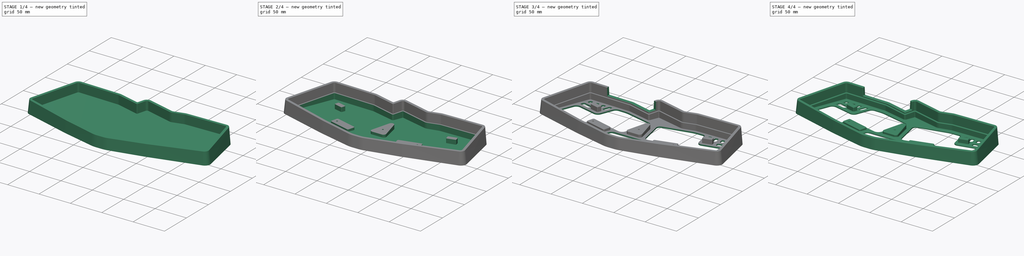
[diagram: build sequence overview — one tinted view per stage of 4, left to right]
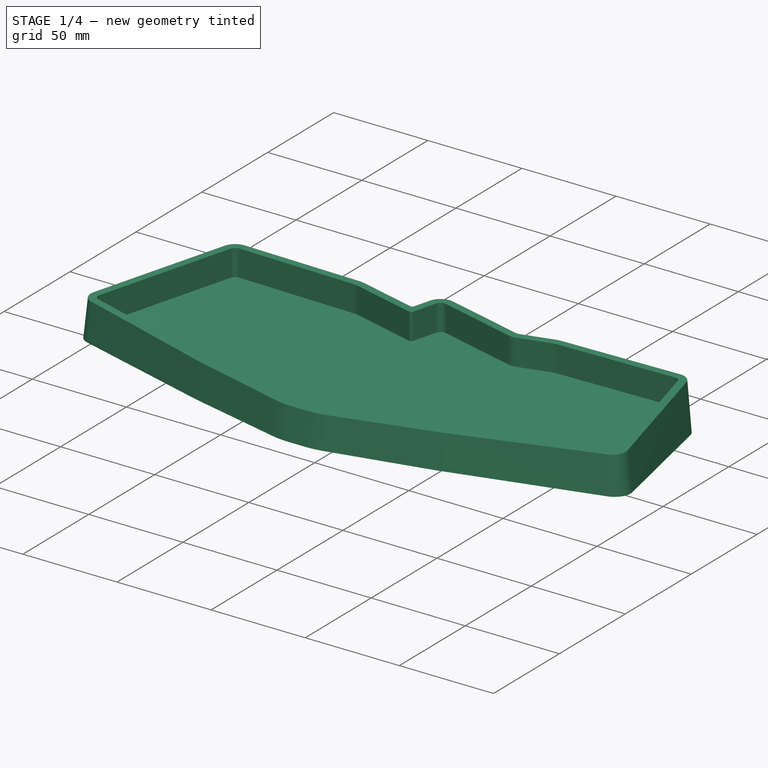
[diagram: stage 1 of 4 — iso view after this stage's code; geometry added in this stage tinted green]
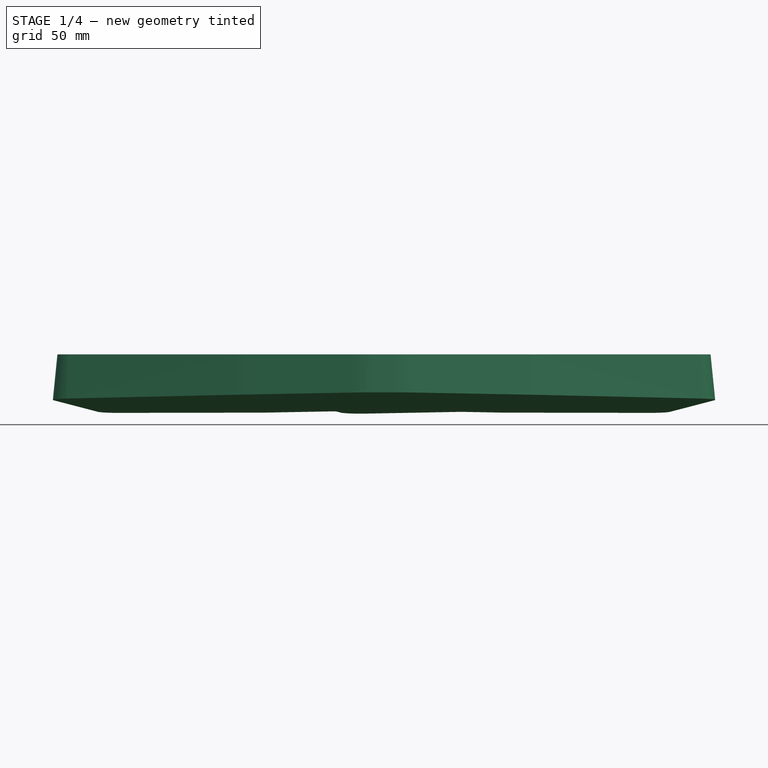
[diagram: stage 1 of 4 — front view after this stage's code; geometry added in this stage tinted green]
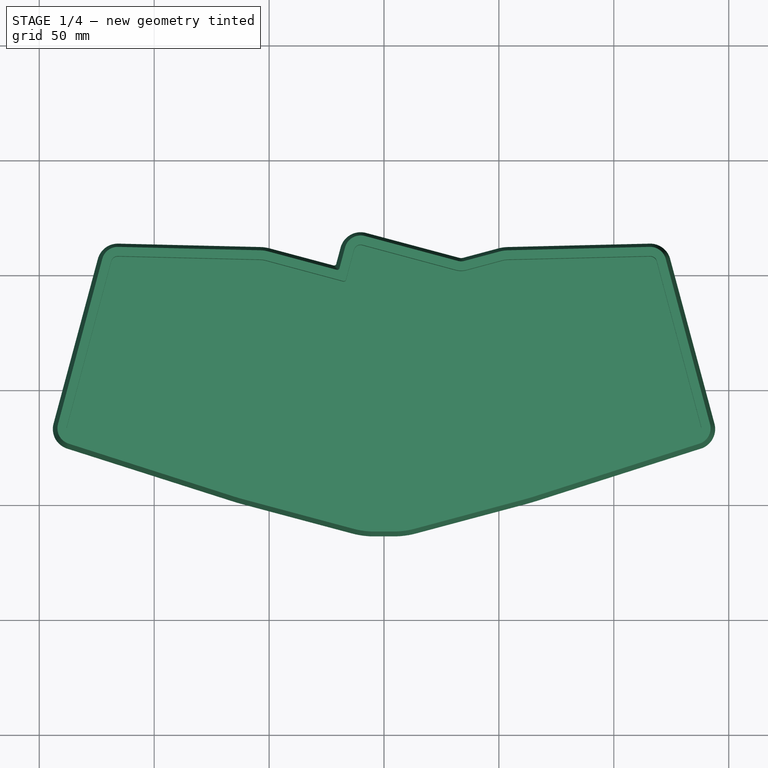
[diagram: stage 1 of 4 — top view after this stage's code; geometry added in this stage tinted green]
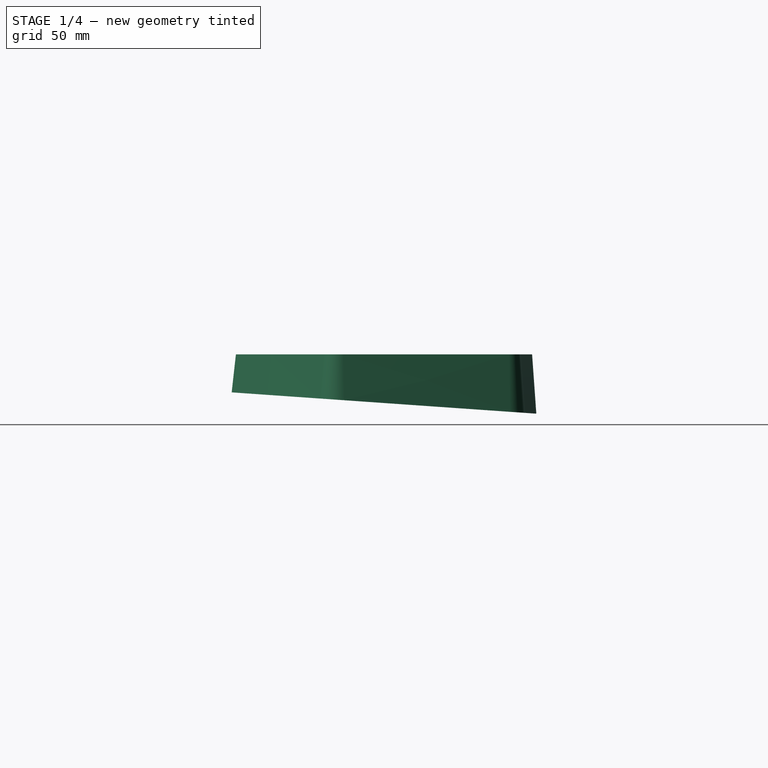
[diagram: stage 1 of 4 — right view after this stage's code; geometry added in this stage tinted green]
FCSTD DOCUMENT  (FreeCAD 0.20R)
Label: case
License: All rights reserved
LicenseURL: http://en.wikipedia.org/wiki/All_rights_reserved
objects: Sketcher::SketchObject×7, PartDesign::Pocket×4, PartDesign::Fillet×2, PartDesign::AdditiveLoft×1, PartDesign::Hole×1, PartDesign::Chamfer×1, PartDesign::Body×1
note: 26 computed .brp shape members not serialized (recipe doc carries the construction recipe); baked Part::Feature solids carry a one-line shape summary decoded from their .brp

FEATURE [Sketcher::SketchObject] Sketch
  AttachmentOffset = pos=(0,0,1) rot=(1,0,0;-0.069813rad)
  FullyConstrained = false
  MapMode = 5
  Placement = pos=(0,0,1) rot=(1,0,0;6.21337rad)
  Support = -> [XY_Plane]
  sketch-geometry (26):
    g0: LineSegment StartX=-115.595 StartY=64.0596 StartZ=0 EndX=-53.816 EndY=62.5676 EndZ=0
    g1: ArcOfCircle CenterX=-115.813 CenterY=55.0622 CenterZ=0 NormalX=0 NormalY=0 NormalZ=1 AngleXU=0 Radius=9 StartAngle=1.54665 EndAngle=2.87979
    g2: LineSegment StartX=-124.506 StartY=57.3916 StartZ=0 EndX=-143.793 EndY=-14.5893 EndZ=0
    g3: ArcOfCircle CenterX=-135.1 CenterY=-16.9187 CenterZ=0 NormalX=0 NormalY=0 NormalZ=1 AngleXU=0 Radius=9 StartAngle=2.87979 EndAngle=4.40275
    g4: LineSegment StartX=-66.2499 StartY=-48.395 StartZ=0 EndX=-137.842 EndY=-25.4907 EndZ=0
    g5: LineSegment StartX=-61.3393 StartY=-49.8376 StartZ=0 EndX=-13.802 EndY=-62.5752 EndZ=0
    g6: ArcOfCircle CenterX=-33.6457 CenterY=53.5165 CenterZ=0 NormalX=0 NormalY=0 NormalZ=1 AngleXU=0 Radius=107 StartAngle=4.40275 EndAngle=4.45059
    g7: LineSegment StartX=-4.18002 StartY=-63.8359 StartZ=0 EndX=4.31048 EndY=-63.8254 EndZ=0
    g8: ArcOfCircle CenterX=-4.22569 CenterY=-26.8359 CenterZ=0 NormalX=0 NormalY=0 NormalZ=1 AngleXU=0 Radius=37 StartAngle=4.45059 EndAngle=4.71362
    g9: ArcOfCircle CenterX=4.2648 CenterY=-26.8254 CenterZ=0 NormalX=0 NormalY=0 NormalZ=1 AngleXU=0 Radius=37 StartAngle=4.71362 EndAngle=4.97419
    g10: LineSegment StartX=61.3393 StartY=-49.8376 StartZ=0 EndX=13.8411 EndY=-62.5647 EndZ=0
    g11: LineSegment StartX=66.2499 StartY=-48.395 StartZ=0 EndX=137.842 EndY=-25.4907 EndZ=0
    g12: ArcOfCircle CenterX=33.6457 CenterY=53.5165 CenterZ=0 NormalX=0 NormalY=0 NormalZ=1 AngleXU=0 Radius=107 StartAngle=4.97419 EndAngle=5.02203
    g13: ArcOfCircle CenterX=135.1 CenterY=-16.9187 CenterZ=0 NormalX=0 NormalY=0 NormalZ=1 AngleXU=0 Radius=9 StartAngle=5.02203 EndAngle=6.54498
    g14: LineSegment StartX=124.506 StartY=57.3916 StartZ=0 EndX=143.793 EndY=-14.5893 EndZ=0
    g15: ArcOfCircle CenterX=115.813 CenterY=55.0622 CenterZ=0 NormalX=0 NormalY=0 NormalZ=1 AngleXU=0 Radius=9 StartAngle=0.261799 EndAngle=1.59494
    g16: LineSegment StartX=53.816 StartY=62.5676 StartZ=0 EndX=115.595 EndY=64.0596 EndZ=0
    g17: LineSegment StartX=49.8265 StartY=61.9932 StartZ=0 EndX=34.3513 EndY=57.8467 EndZ=0
    g18: LineSegment StartX=32.7984 StartY=57.8467 StartZ=0 EndX=-7.84452 EndY=68.7369 EndZ=0
    g19: ArcOfCircle CenterX=54.2264 CenterY=45.5725 CenterZ=0 NormalX=0 NormalY=0 NormalZ=1 AngleXU=0 Radius=17 StartAngle=1.59494 EndAngle=1.8326
    g20: ArcOfCircle CenterX=33.5748 CenterY=60.7444 CenterZ=0 NormalX=0 NormalY=0 NormalZ=1 AngleXU=0 Radius=3 StartAngle=4.45059 EndAngle=4.97419
    g21: ArcOfCircle CenterX=-54.2264 CenterY=45.5725 CenterZ=0 NormalX=0 NormalY=0 NormalZ=1 AngleXU=0 Radius=17 StartAngle=1.309 EndAngle=1.54665
    g22: ArcOfCircle CenterX=-10.1739 CenterY=60.0436 CenterZ=0 NormalX=0 NormalY=0 NormalZ=1 AngleXU=0 Radius=9 StartAngle=1.309 EndAngle=2.87979
    g23: LineSegment StartX=-18.8672 StartY=62.3729 StartZ=0 EndX=-20.7772 EndY=55.2448 EndZ=0
    g24: LineSegment StartX=-49.8265 StartY=61.9932 StartZ=0 EndX=-22.002 EndY=54.5377 EndZ=0
    g25: ArcOfCircle CenterX=-21.7431 CenterY=55.5036 CenterZ=0 NormalX=0 NormalY=0 NormalZ=1 AngleXU=0 Radius=1 StartAngle=4.45059 EndAngle=6.02139
  constraints (26):
    c: Coincident(g2,g3)
    c: Coincident(g3,g4)
    c: Coincident(g1,g2)
    c: Coincident(g0,g1)
    c: Coincident(g4,g6)
    c: Coincident(g5,g6)
    c: Coincident(g0,g21)
    c: Coincident(g21,g24)
    c: Coincident(g24,g25)
    c: Coincident(g23,g25)
    c: Coincident(g22,g23)
    c: Coincident(g5,g8)
    c: Coincident(g18,g22)
    c: Coincident(g7,g8)
    c: Coincident(g7,g9)
    c: Coincident(g9,g10)
    c: Coincident(g18,g20)
    c: Coincident(g17,g20)
    c: Coincident(g17,g19)
    c: Coincident(g16,g19)
    c: Coincident(g10,g12)
    c: Coincident(g11,g12)
    c: Coincident(g15,g16)
    c: Coincident(g14,g15)
    c: Coincident(g11,g13)
    c: Coincident(g13,g14)
FEATURE [Sketcher::SketchObject] Sketch001
  AttachmentOffset = pos=(0,0,22) rot=(0,0,1;0rad)
  FullyConstrained = false
  MapMode = 5
  Placement = pos=(0,0,22) rot=(0,0,1;0rad)
  Support = -> [XY_Plane]
  sketch-geometry (26):
    g0: LineSegment StartX=53.8643 StartY=60.5681 StartZ=0 EndX=115.644 EndY=62.0601 EndZ=0
    g1: LineSegment StartX=122.574 StartY=56.8739 StartZ=0 EndX=141.861 EndY=-15.1069 EndZ=0
    g2: ArcOfCircle CenterX=115.813 CenterY=55.0622 CenterZ=0 NormalX=0 NormalY=0 NormalZ=1 AngleXU=0 Radius=7 StartAngle=0.261799 EndAngle=1.59494
    g3: ArcOfCircle CenterX=135.1 CenterY=-16.9187 CenterZ=0 NormalX=0 NormalY=0 NormalZ=1 AngleXU=0 Radius=7 StartAngle=5.02203 EndAngle=6.54498
    g4: LineSegment StartX=65.6405 StartY=-46.4902 StartZ=0 EndX=137.233 EndY=-23.5858 EndZ=0
    g5: LineSegment StartX=60.8217 StartY=-47.9057 StartZ=0 EndX=13.3235 EndY=-60.6328 EndZ=0
    g6: ArcOfCircle CenterX=33.6457 CenterY=53.5165 CenterZ=0 NormalX=0 NormalY=0 NormalZ=1 AngleXU=0 Radius=105 StartAngle=4.97419 EndAngle=5.02203
    g7: ArcOfCircle CenterX=4.2648 CenterY=-26.8254 CenterZ=0 NormalX=0 NormalY=0 NormalZ=1 AngleXU=0 Radius=35 StartAngle=4.71362 EndAngle=4.97419
    g8: LineSegment StartX=-4.18249 StartY=-61.8359 StartZ=0 EndX=4.30801 EndY=-61.8254 EndZ=0
    g9: ArcOfCircle CenterX=-4.22569 CenterY=-26.8359 CenterZ=0 NormalX=0 NormalY=0 NormalZ=1 AngleXU=0 Radius=35 StartAngle=4.45059 EndAngle=4.71362
    g10: LineSegment StartX=-60.8217 StartY=-47.9057 StartZ=0 EndX=-13.2844 EndY=-60.6433 EndZ=0
    g11: LineSegment StartX=-65.6405 StartY=-46.4902 StartZ=0 EndX=-137.233 EndY=-23.5858 EndZ=0
    g12: ArcOfCircle CenterX=-33.6457 CenterY=53.5165 CenterZ=0 NormalX=0 NormalY=0 NormalZ=1 AngleXU=0 Radius=105 StartAngle=4.40275 EndAngle=4.45059
    g13: ArcOfCircle CenterX=-135.1 CenterY=-16.9187 CenterZ=0 NormalX=0 NormalY=0 NormalZ=1 AngleXU=0 Radius=7 StartAngle=2.87979 EndAngle=4.40275
    g14: LineSegment StartX=-122.574 StartY=56.8739 StartZ=0 EndX=-141.861 EndY=-15.1069 EndZ=0
    g15: LineSegment StartX=32.2807 StartY=55.9148 StartZ=0 EndX=-8.36216 EndY=66.8051 EndZ=0
    g16: LineSegment StartX=-115.644 StartY=62.0601 StartZ=0 EndX=-53.8643 EndY=60.5681 EndZ=0
    g17: ArcOfCircle CenterX=-10.1739 CenterY=60.0436 CenterZ=0 NormalX=0 NormalY=0 NormalZ=1 AngleXU=0 Radius=7 StartAngle=1.309 EndAngle=2.87979
    g18: ArcOfCircle CenterX=-115.813 CenterY=55.0622 CenterZ=0 NormalX=0 NormalY=0 NormalZ=1 AngleXU=0 Radius=7 StartAngle=1.54665 EndAngle=2.87979
    g19: ArcOfCircle CenterX=-54.2264 CenterY=45.5725 CenterZ=0 NormalX=0 NormalY=0 NormalZ=1 AngleXU=0 Radius=15 StartAngle=1.309 EndAngle=1.54665
    g20: LineSegment StartX=50.3442 StartY=60.0614 StartZ=0 EndX=34.8689 EndY=55.9148 EndZ=0
    g21: ArcOfCircle CenterX=33.5748 CenterY=60.7444 CenterZ=0 NormalX=0 NormalY=0 NormalZ=1 AngleXU=0 Radius=5 StartAngle=4.45059 EndAngle=4.97419
    g22: ArcOfCircle CenterX=54.2264 CenterY=45.5725 CenterZ=0 NormalX=0 NormalY=0 NormalZ=1 AngleXU=0 Radius=15 StartAngle=1.59494 EndAngle=1.8326
    g23: LineSegment StartX=-50.3442 StartY=60.0614 StartZ=0 EndX=-20.5877 EndY=52.0882 EndZ=0
    g24: LineSegment StartX=-16.9354 StartY=61.8553 StartZ=0 EndX=-19.363 EndY=52.7953 EndZ=0
    g25: ArcOfCircle CenterX=-20.3289 CenterY=53.0541 CenterZ=0 NormalX=0 NormalY=0 NormalZ=1 AngleXU=0 Radius=1 StartAngle=4.45059 EndAngle=6.02139
  constraints (26):
    c: Coincident(g13,g14)
    c: Coincident(g11,g13)
    c: Coincident(g14,g18)
    c: Coincident(g16,g18)
    c: Coincident(g11,g12)
    c: Coincident(g10,g12)
    c: Coincident(g16,g19)
    c: Coincident(g19,g23)
    c: Coincident(g23,g25)
    c: Coincident(g24,g25)
    c: Coincident(g17,g24)
    c: Coincident(g9,g10)
    c: Coincident(g15,g17)
    c: Coincident(g8,g9)
    c: Coincident(g7,g8)
    c: Coincident(g5,g7)
    c: Coincident(g15,g21)
    c: Coincident(g20,g21)
    c: Coincident(g20,g22)
    c: Coincident(g0,g22)
    c: Coincident(g5,g6)
    c: Coincident(g4,g6)
    c: Coincident(g0,g2)
    c: Coincident(g1,g2)
    c: Coincident(g3,g4)
    c: Coincident(g1,g3)
FEATURE [PartDesign::AdditiveLoft] AdditiveLoft
  Closed = true
  Profile = -> Sketch001
  Ruled = true
  Sections = -> [Sketch]
FEATURE [Sketcher::SketchObject] Sketch002
  FullyConstrained = false
  MapMode = 5
  Placement = pos=(0,0,22) rot=(0,0,1;0rad)
  Support = -> [AdditiveLoft]
  sketch-geometry (26):
    g0: ArcOfCircle CenterX=115.813 CenterY=55.0622 CenterZ=0 NormalX=0 NormalY=0 NormalZ=1 AngleXU=0 Radius=3 StartAngle=0.261799 EndAngle=1.59494
    g1: LineSegment StartX=118.711 StartY=55.8386 StartZ=0 EndX=137.998 EndY=-16.1422 EndZ=0
    g2: LineSegment StartX=53.9609 StartY=56.5693 StartZ=0 EndX=115.74 EndY=58.0613 EndZ=0
    g3: LineSegment StartX=51.3794 StartY=56.1977 StartZ=0 EndX=35.9042 EndY=52.0511 EndZ=0
    g4: ArcOfCircle CenterX=54.2264 CenterY=45.5725 CenterZ=0 NormalX=0 NormalY=0 NormalZ=1 AngleXU=0 Radius=11 StartAngle=1.59494 EndAngle=1.8326
    g5: LineSegment StartX=31.2455 StartY=52.0511 StartZ=0 EndX=-9.39744 EndY=62.9414 EndZ=0
    g6: ArcOfCircle CenterX=33.5748 CenterY=60.7444 CenterZ=0 NormalX=0 NormalY=0 NormalZ=1 AngleXU=0 Radius=9 StartAngle=4.45059 EndAngle=4.97419
    g7: ArcOfCircle CenterX=-10.1739 CenterY=60.0436 CenterZ=0 NormalX=0 NormalY=0 NormalZ=1 AngleXU=0 Radius=3 StartAngle=1.309 EndAngle=2.87979
    g8: LineSegment StartX=-13.0717 StartY=60.82 StartZ=0 EndX=-16.5346 EndY=47.8963 EndZ=0
    g9: LineSegment StartX=-51.3794 StartY=56.1977 StartZ=0 EndX=-17.7593 EndY=47.1892 EndZ=0
    g10: ArcOfCircle CenterX=-17.5005 CenterY=48.1551 CenterZ=0 NormalX=0 NormalY=0 NormalZ=1 AngleXU=0 Radius=1 StartAngle=4.45059 EndAngle=6.02139
    g11: LineSegment StartX=-115.74 StartY=58.0613 StartZ=0 EndX=-53.9609 EndY=56.5693 EndZ=0
    g12: ArcOfCircle CenterX=-54.2264 CenterY=45.5725 CenterZ=0 NormalX=0 NormalY=0 NormalZ=1 AngleXU=0 Radius=11 StartAngle=1.309 EndAngle=1.54665
    g13: LineSegment StartX=-118.711 StartY=55.8386 StartZ=0 EndX=-137.998 EndY=-16.1422 EndZ=0
    g14: ArcOfCircle CenterX=-115.813 CenterY=55.0622 CenterZ=0 NormalX=0 NormalY=0 NormalZ=1 AngleXU=0 Radius=3 StartAngle=1.54665 EndAngle=2.87979
    g15: ArcOfCircle CenterX=-135.1 CenterY=-16.9187 CenterZ=0 NormalX=0 NormalY=0 NormalZ=1 AngleXU=0 Radius=3 StartAngle=2.87979 EndAngle=4.40275
    g16: LineSegment StartX=-64.4217 StartY=-42.6804 StartZ=0 EndX=-136.014 EndY=-19.776 EndZ=0
    g17: ArcOfCircle CenterX=-33.6457 CenterY=53.5165 CenterZ=0 NormalX=0 NormalY=0 NormalZ=1 AngleXU=0 Radius=101 StartAngle=4.40275 EndAngle=4.45059
    g18: LineSegment StartX=-59.7864 StartY=-44.042 StartZ=0 EndX=-12.2491 EndY=-56.7796 EndZ=0
    g19: ArcOfCircle CenterX=-4.22569 CenterY=-26.8359 CenterZ=0 NormalX=0 NormalY=0 NormalZ=1 AngleXU=0 Radius=31 StartAngle=4.45059 EndAngle=4.71362
    g20: LineSegment StartX=-4.18742 StartY=-57.8359 StartZ=0 EndX=4.30307 EndY=-57.8254 EndZ=0
    g21: ArcOfCircle CenterX=4.2648 CenterY=-26.8254 CenterZ=0 NormalX=0 NormalY=0 NormalZ=1 AngleXU=0 Radius=31 StartAngle=4.71362 EndAngle=4.97419
    g22: LineSegment StartX=59.7864 StartY=-44.042 StartZ=0 EndX=12.2882 EndY=-56.7691 EndZ=0
    g23: LineSegment StartX=64.4217 StartY=-42.6804 StartZ=0 EndX=136.014 EndY=-19.776 EndZ=0
    g24: ArcOfCircle CenterX=33.6457 CenterY=53.5165 CenterZ=0 NormalX=0 NormalY=0 NormalZ=1 AngleXU=0 Radius=101 StartAngle=4.97419 EndAngle=5.02203
    g25: ArcOfCircle CenterX=135.1 CenterY=-16.9187 CenterZ=0 NormalX=0 NormalY=0 NormalZ=1 AngleXU=0 Radius=3 StartAngle=5.02203 EndAngle=6.54498
  constraints (26):
    c: Coincident(g13,g15)
    c: Coincident(g15,g16)
    c: Coincident(g13,g14)
    c: Coincident(g11,g14)
    c: Coincident(g16,g17)
    c: Coincident(g17,g18)
    c: Coincident(g11,g12)
    c: Coincident(g9,g12)
    c: Coincident(g9,g10)
    c: Coincident(g8,g10)
    c: Coincident(g7,g8)
    c: Coincident(g18,g19)
    c: Coincident(g5,g7)
    c: Coincident(g19,g20)
    c: Coincident(g20,g21)
    c: Coincident(g21,g22)
    c: Coincident(g5,g6)
    c: Coincident(g3,g6)
    c: Coincident(g3,g4)
    c: Coincident(g2,g4)
    c: Coincident(g22,g24)
    c: Coincident(g23,g24)
    c: Coincident(g0,g2)
    c: Coincident(g0,g1)
    c: Coincident(g23,g25)
    c: Coincident(g1,g25)
FEATURE [PartDesign::Pocket] Pocket
  BaseFeature = -> AdditiveLoft
  Direction = (0,0,-1)
  Length = 14
  Length2 = 5
  Profile = -> Sketch002
  ReferenceAxis = -> Sketch002 [N_Axis]
  Type = 0
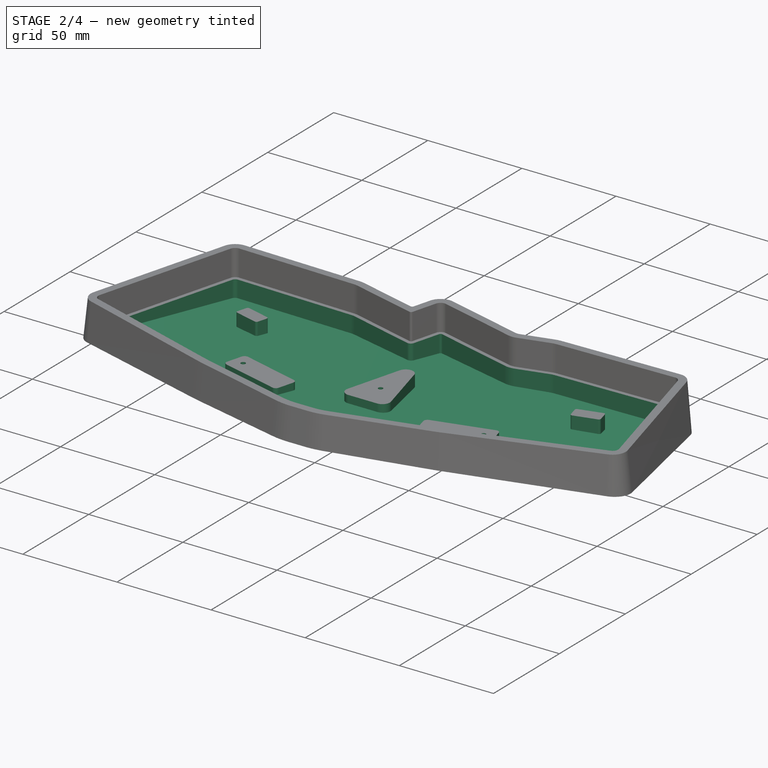
[diagram: stage 2 of 4 — iso view after this stage's code; geometry added in this stage tinted green]
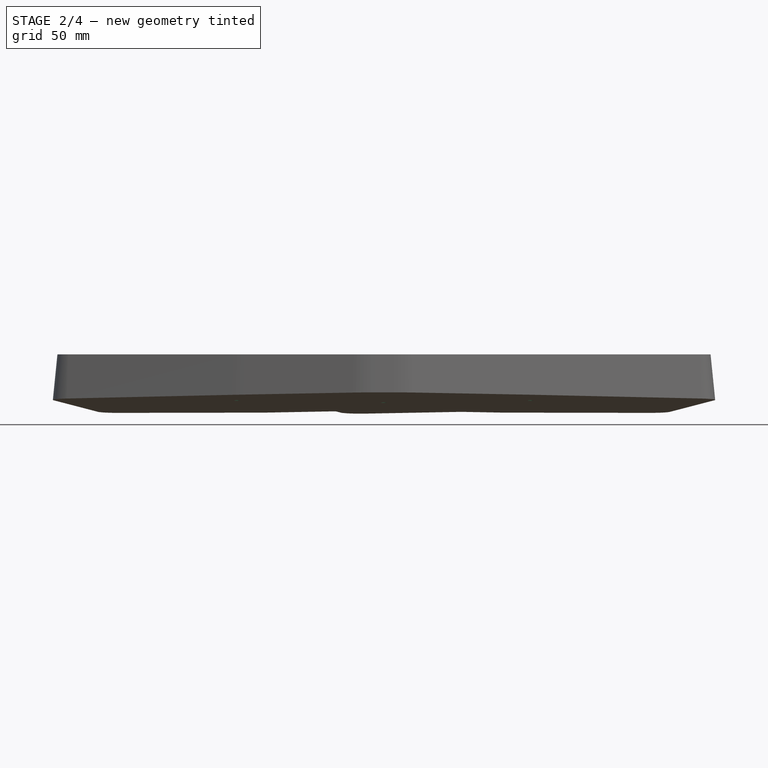
[diagram: stage 2 of 4 — front view after this stage's code; geometry added in this stage tinted green]
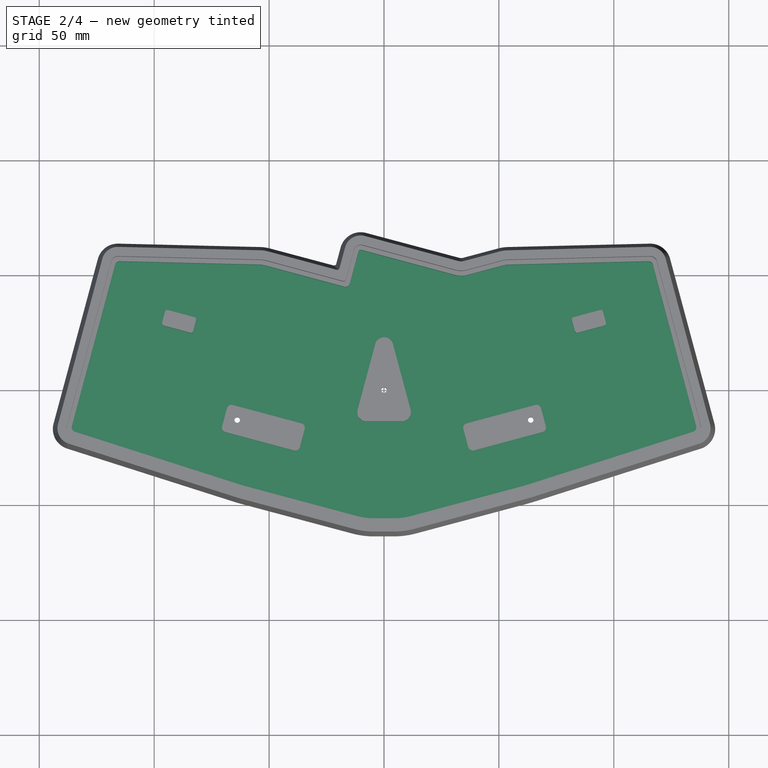
[diagram: stage 2 of 4 — top view after this stage's code; geometry added in this stage tinted green]
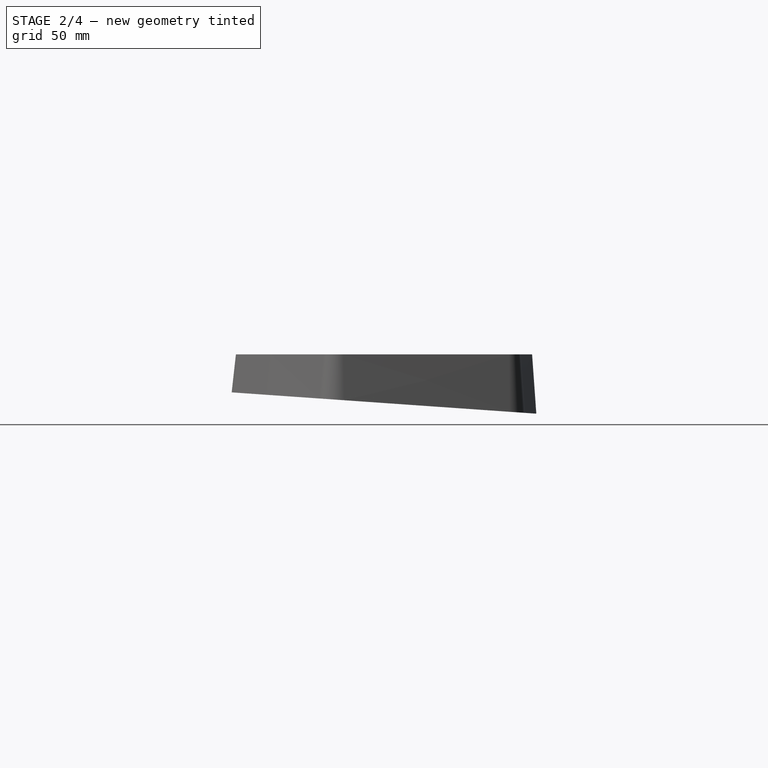
[diagram: stage 2 of 4 — right view after this stage's code; geometry added in this stage tinted green]
FEATURE [Sketcher::SketchObject] Sketch003
  FullyConstrained = false
  MapMode = 5
  Placement = pos=(0,0,8) rot=(0,0,1;0rad)
  Support = -> [Pocket]
  sketch-geometry (64):
    g0: ArcOfCircle CenterX=0.0404631 CenterY=18.9582 CenterZ=0 NormalX=0 NormalY=0 NormalZ=1 AngleXU=0 Radius=4 StartAngle=0.261799 EndAngle=2.87979
    g1: LineSegment StartX=3.90417 StartY=19.9934 StartZ=0 EndX=11.5614 EndY=-8.5836 EndZ=0
    g2: ArcOfCircle CenterX=7.69766 CenterY=-9.61888 CenterZ=0 NormalX=0 NormalY=0 NormalZ=1 AngleXU=0 Radius=4 StartAngle=4.71239 EndAngle=6.54498
    g3: LineSegment StartX=-7.61673 StartY=-13.6189 StartZ=0 EndX=7.69766 EndY=-13.6189 EndZ=0
    g4: LineSegment StartX=-3.82324 StartY=19.9934 StartZ=0 EndX=-11.4804 EndY=-8.5836 EndZ=0
    g5: ArcOfCircle CenterX=-7.61673 CenterY=-9.61888 CenterZ=0 NormalX=0 NormalY=0 NormalZ=1 AngleXU=0 Radius=4 StartAngle=2.87979 EndAngle=4.71239
    g6: ArcOfCircle CenterX=66.3925 CenterY=-8.44005 CenterZ=0 NormalX=0 NormalY=0 NormalZ=1 AngleXU=0 Radius=2 StartAngle=0.261799 EndAngle=1.8326
    g7: LineSegment StartX=68.3244 StartY=-7.92242 StartZ=0 EndX=70.4467 EndY=-15.843 EndZ=0
    g8: ArcOfCircle CenterX=68.5149 CenterY=-16.3606 CenterZ=0 NormalX=0 NormalY=0 NormalZ=1 AngleXU=0 Radius=2 StartAngle=4.97419 EndAngle=6.54498
    g9: LineSegment StartX=35.9312 StartY=-14.5316 StartZ=0 EndX=65.8749 EndY=-6.5082 EndZ=0
    g10: ArcOfCircle CenterX=36.4488 CenterY=-16.4634 CenterZ=0 NormalX=0 NormalY=0 NormalZ=1 AngleXU=0 Radius=2 StartAngle=1.8326 EndAngle=3.40339
    g11: LineSegment StartX=39.0888 StartY=-26.3159 StartZ=0 EndX=69.0325 EndY=-18.2925 EndZ=0
    g12: LineSegment StartX=34.517 StartY=-16.9811 StartZ=0 EndX=36.6393 EndY=-24.9017 EndZ=0
    g13: ArcOfCircle CenterX=38.5712 CenterY=-24.384 CenterZ=0 NormalX=0 NormalY=0 NormalZ=1 AngleXU=0 Radius=2 StartAngle=3.40339 EndAngle=4.97419
    g14: LineSegment StartX=59.2688 StartY=-42.1102 StartZ=0 EndX=11.7706 EndY=-54.8373 EndZ=0
    g15: ArcOfCircle CenterX=33.6457 CenterY=53.5165 CenterZ=0 NormalX=0 NormalY=0 NormalZ=1 AngleXU=0 Radius=99 StartAngle=4.97419 EndAngle=5.02203
    g16: ArcOfCircle CenterX=4.2648 CenterY=-26.8254 CenterZ=0 NormalX=0 NormalY=0 NormalZ=1 AngleXU=0 Radius=29 StartAngle=4.71362 EndAngle=4.97419
    g17: LineSegment StartX=-4.18989 StartY=-55.8359 StartZ=0 EndX=4.3006 EndY=-55.8254 EndZ=0
    g18: ArcOfCircle CenterX=-4.22569 CenterY=-26.8359 CenterZ=0 NormalX=0 NormalY=0 NormalZ=1 AngleXU=0 Radius=29 StartAngle=4.45059 EndAngle=4.71362
    g19: LineSegment StartX=-59.2688 StartY=-42.1102 StartZ=0 EndX=-11.7314 EndY=-54.8477 EndZ=0
    g20: LineSegment StartX=51.8971 StartY=54.2658 StartZ=0 EndX=36.4218 EndY=50.1193 EndZ=0
    g21: ArcOfCircle CenterX=33.5748 CenterY=60.7444 CenterZ=0 NormalX=0 NormalY=0 NormalZ=1 AngleXU=0 Radius=11 StartAngle=4.45059 EndAngle=4.97419
    g22: LineSegment StartX=30.7278 StartY=50.1193 StartZ=0 EndX=-9.91508 EndY=61.0095 EndZ=0
    g23: ArcOfCircle CenterX=-10.1739 CenterY=60.0436 CenterZ=0 NormalX=0 NormalY=0 NormalZ=1 AngleXU=0 Radius=1 StartAngle=1.309 EndAngle=2.87979
    g24: ArcOfCircle CenterX=-54.2264 CenterY=45.5725 CenterZ=0 NormalX=0 NormalY=0 NormalZ=1 AngleXU=0 Radius=9 StartAngle=1.309 EndAngle=1.54665
    g25: ArcOfCircle CenterX=-33.6457 CenterY=53.5165 CenterZ=0 NormalX=0 NormalY=0 NormalZ=1 AngleXU=0 Radius=99 StartAngle=4.40275 EndAngle=4.45059
    g26: ArcOfCircle CenterX=54.2264 CenterY=45.5725 CenterZ=0 NormalX=0 NormalY=0 NormalZ=1 AngleXU=0 Radius=9 StartAngle=1.59494 EndAngle=1.8326
    g27: ArcOfCircle CenterX=-66.3925 CenterY=-8.44005 CenterZ=0 NormalX=0 NormalY=0 NormalZ=1 AngleXU=0 Radius=2 StartAngle=1.309 EndAngle=2.87979
    g28: LineSegment StartX=-68.3244 StartY=-7.92242 StartZ=0 EndX=-70.4467 EndY=-15.843 EndZ=0
    g29: ArcOfCircle CenterX=-68.5149 CenterY=-16.3606 CenterZ=0 NormalX=0 NormalY=0 NormalZ=1 AngleXU=0 Radius=2 StartAngle=2.87979 EndAngle=4.45059
    g30: LineSegment StartX=-35.9312 StartY=-14.5316 StartZ=0 EndX=-65.8749 EndY=-6.5082 EndZ=0
    g31: ArcOfCircle CenterX=-36.4488 CenterY=-16.4634 CenterZ=0 NormalX=0 NormalY=0 NormalZ=1 AngleXU=0 Radius=2 StartAngle=6.02139 EndAngle=7.59218
    g32: LineSegment StartX=-39.0888 StartY=-26.3159 StartZ=0 EndX=-69.0325 EndY=-18.2925 EndZ=0
    g33: LineSegment StartX=-34.517 StartY=-16.9811 StartZ=0 EndX=-36.6393 EndY=-24.9017 EndZ=0
    g34: ArcOfCircle CenterX=-38.5712 CenterY=-24.384 CenterZ=0 NormalX=0 NormalY=0 NormalZ=1 AngleXU=0 Radius=2 StartAngle=4.45059 EndAngle=6.02139
    g35: LineSegment StartX=-51.8971 StartY=54.2658 StartZ=0 EndX=-17.311 EndY=44.9985 EndZ=0
    g36: LineSegment StartX=-11.1398 StartY=60.3024 StartZ=0 EndX=-14.8615 EndY=46.4128 EndZ=0
    g37: ArcOfCircle CenterX=-16.7934 CenterY=46.9304 CenterZ=0 NormalX=0 NormalY=0 NormalZ=1 AngleXU=0 Radius=2 StartAngle=4.45059 EndAngle=6.02139
    g38: LineSegment StartX=-115.002 StartY=56.0429 StartZ=0 EndX=-54.0092 EndY=54.5699 EndZ=0
    g39: ArcOfCircle CenterX=-115.05 CenterY=54.0435 CenterZ=0 NormalX=0 NormalY=0 NormalZ=1 AngleXU=0 Radius=2 StartAngle=1.54665 EndAngle=2.87979
    g40: LineSegment StartX=-63.8122 StartY=-40.7755 StartZ=0 EndX=-134.497 EndY=-18.1616 EndZ=0
    g41: LineSegment StartX=-116.982 StartY=54.5611 StartZ=0 EndX=-135.819 EndY=-15.7391 EndZ=0
    g42: ArcOfCircle CenterX=-133.887 CenterY=-16.2567 CenterZ=0 NormalX=0 NormalY=0 NormalZ=1 AngleXU=0 Radius=2 StartAngle=2.87979 EndAngle=4.40275
    g43: LineSegment StartX=54.0092 StartY=54.5699 StartZ=0 EndX=115.002 EndY=56.0429 EndZ=0
    g44: ArcOfCircle CenterX=115.05 CenterY=54.0435 CenterZ=0 NormalX=0 NormalY=0 NormalZ=1 AngleXU=0 Radius=2 StartAngle=0.261799 EndAngle=1.59494
    g45: LineSegment StartX=63.8122 StartY=-40.7755 StartZ=0 EndX=134.497 EndY=-18.1616 EndZ=0
    g46: LineSegment StartX=116.982 StartY=54.5611 StartZ=0 EndX=135.819 EndY=-15.7391 EndZ=0
    g47: ArcOfCircle CenterX=133.887 CenterY=-16.2567 CenterZ=0 NormalX=0 NormalY=0 NormalZ=1 AngleXU=0 Radius=2 StartAngle=5.02203 EndAngle=6.54498
    g48: ArcOfCircle CenterX=-82.7294 CenterY=30.7443 CenterZ=0 NormalX=0 NormalY=0 NormalZ=1 AngleXU=0 Radius=1 StartAngle=6.02139 EndAngle=7.59218
    g49: LineSegment StartX=-94.0617 StartY=34.8161 StartZ=0 EndX=-82.4705 EndY=31.7103 EndZ=0
    g50: ArcOfCircle CenterX=-94.3205 CenterY=33.8502 CenterZ=0 NormalX=0 NormalY=0 NormalZ=1 AngleXU=0 Radius=1 StartAngle=1.309 EndAngle=2.87979
    g51: LineSegment StartX=-96.5805 StartY=29.2794 StartZ=0 EndX=-95.2864 EndY=34.109 EndZ=0
    g52: ArcOfCircle CenterX=-95.6146 CenterY=29.0205 CenterZ=0 NormalX=0 NormalY=0 NormalZ=1 AngleXU=0 Radius=1 StartAngle=2.87979 EndAngle=4.45059
    g53: LineSegment StartX=-84.2823 StartY=24.9488 StartZ=0 EndX=-95.8734 EndY=28.0546 EndZ=0
    g54: LineSegment StartX=-81.7634 StartY=30.4855 StartZ=0 EndX=-83.0575 EndY=25.6559 EndZ=0
    g55: ArcOfCircle CenterX=-84.0235 CenterY=25.9147 CenterZ=0 NormalX=0 NormalY=0 NormalZ=1 AngleXU=0 Radius=1 StartAngle=4.45059 EndAngle=6.02139
    g56: ArcOfCircle CenterX=82.7294 CenterY=30.7443 CenterZ=0 NormalX=0 NormalY=0 NormalZ=1 AngleXU=0 Radius=1 StartAngle=1.8326 EndAngle=3.40339
    g57: LineSegment StartX=94.0617 StartY=34.8161 StartZ=0 EndX=82.4705 EndY=31.7103 EndZ=0
    g58: ArcOfCircle CenterX=94.3205 CenterY=33.8502 CenterZ=0 NormalX=0 NormalY=0 NormalZ=1 AngleXU=0 Radius=1 StartAngle=0.261799 EndAngle=1.8326
    g59: LineSegment StartX=96.5805 StartY=29.2794 StartZ=0 EndX=95.2864 EndY=34.109 EndZ=0
    g60: ArcOfCircle CenterX=95.6146 CenterY=29.0205 CenterZ=0 NormalX=0 NormalY=0 NormalZ=1 AngleXU=0 Radius=1 StartAngle=4.97419 EndAngle=6.54498
    g61: LineSegment StartX=84.2823 StartY=24.9488 StartZ=0 EndX=95.8734 EndY=28.0546 EndZ=0
    g62: LineSegment StartX=81.7634 StartY=30.4855 StartZ=0 EndX=83.0575 EndY=25.6559 EndZ=0
    g63: ArcOfCircle CenterX=84.0235 CenterY=25.9147 CenterZ=0 NormalX=0 NormalY=0 NormalZ=1 AngleXU=0 Radius=1 StartAngle=3.40339 EndAngle=4.97419
FEATURE [PartDesign::Pocket] Pocket001
  BaseFeature = -> Pocket
  Direction = (0,0,-1)
  Length = 0
  Length2 = 5
  Offset = -2
  Profile = -> Sketch003
  ReferenceAxis = -> Sketch003 [N_Axis]
  Type = 3
  UpToFace = -> Pocket [Face54]
FEATURE [Sketcher::SketchObject] Sketch004
  FullyConstrained = false
  MapMode = 5
  Placement = pos=(0,0,8) rot=(0,0,1;0rad)
  Support = -> [Pocket]
  sketch-geometry (3):
    g0: Circle CenterX=63.8472 CenterY=-13.0592 CenterZ=0 NormalX=0 NormalY=0 NormalZ=-1 AngleXU=0 Radius=1.1
    g1: Circle CenterX=0 CenterY=0 CenterZ=0 NormalX=0 NormalY=0 NormalZ=-1 AngleXU=0 Radius=1.1
    g2: Circle CenterX=-63.8472 CenterY=-13.0592 CenterZ=0 NormalX=0 NormalY=0 NormalZ=-1 AngleXU=0 Radius=1.1
FEATURE [PartDesign::Hole] Hole
  BaseFeature = -> Pocket001
  CustomThreadClearance = 0
  Depth = 25
  DepthType = 0
  Diameter = 2.42
  DrillForDepth = false
  DrillPoint = 1
  DrillPointAngle = 118
  HoleCutCountersinkAngle = 90
  HoleCutCustomValues = false
  HoleCutDepth = 0
  HoleCutDiameter = 6.1
  HoleCutType = 0
  ModelThread = false
  Profile = -> Sketch004
  Tapered = false
  TaperedAngle = 90
  ThreadClass = 0
  ThreadDepth = 25
  ThreadDepthType = 0
  ThreadDirection = 0
  ThreadFit = 0
  ThreadSize = 7
  ThreadType = 1
  Threaded = false
  UseCustomThreadClearance = false
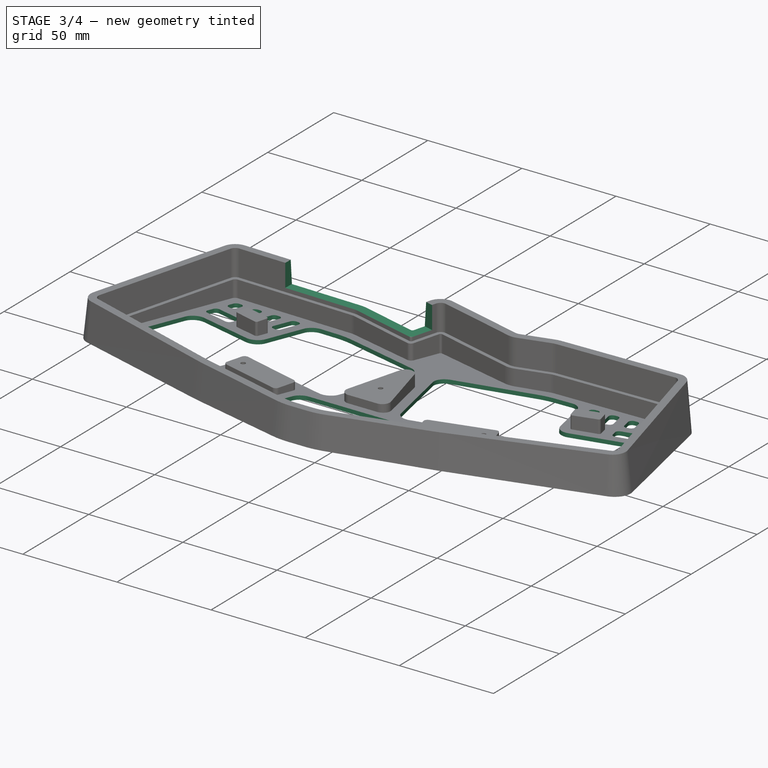
[diagram: stage 3 of 4 — iso view after this stage's code; geometry added in this stage tinted green]
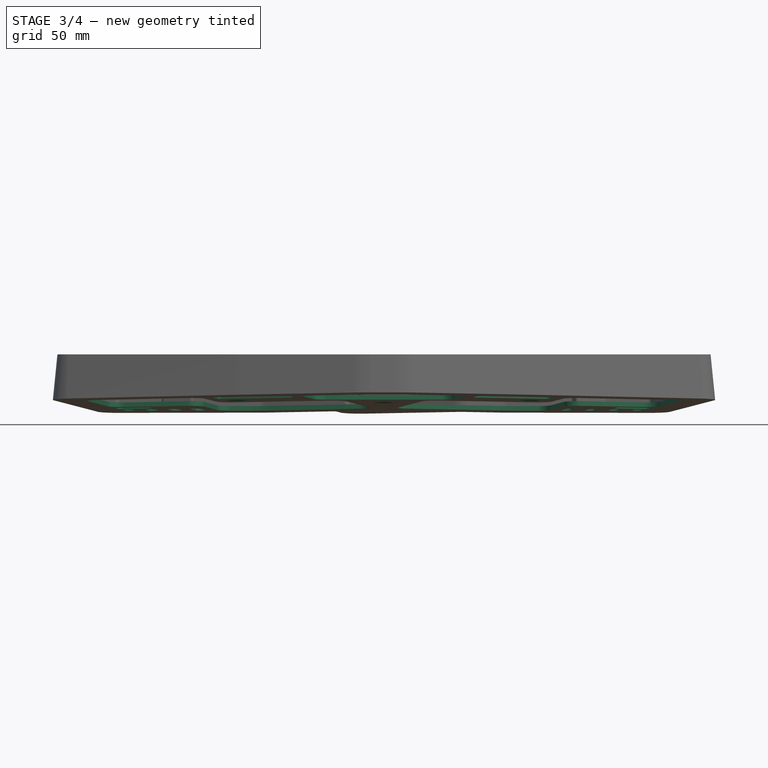
[diagram: stage 3 of 4 — front view after this stage's code; geometry added in this stage tinted green]
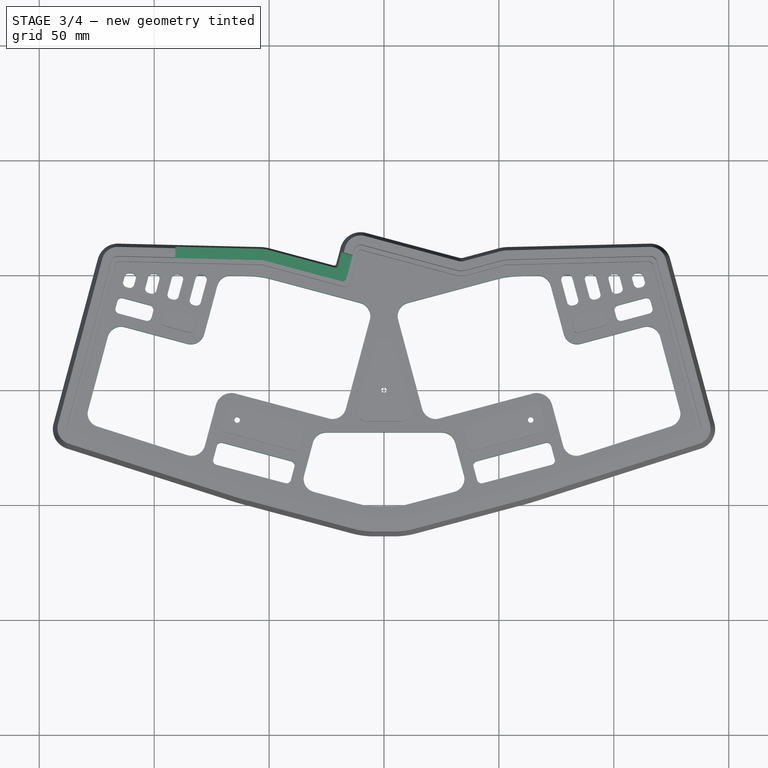
[diagram: stage 3 of 4 — top view after this stage's code; geometry added in this stage tinted green]
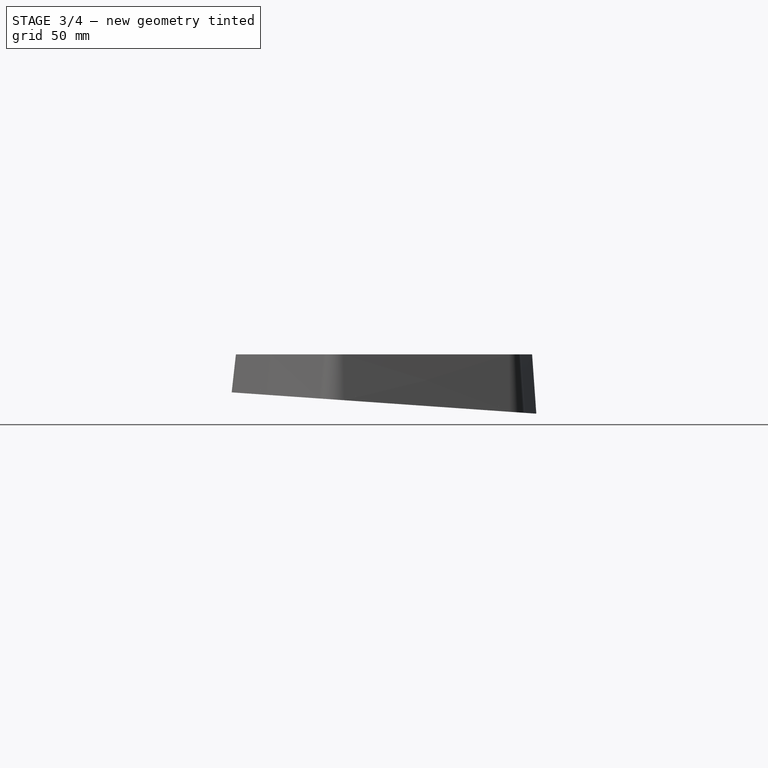
[diagram: stage 3 of 4 — right view after this stage's code; geometry added in this stage tinted green]
FEATURE [Sketcher::SketchObject] Sketch005
  FullyConstrained = false
  MapMode = 5
  Placement = pos=(0,0.20876,2.9854) rot=(-1,0,0;0.069813rad)
  Support = -> [Pocket001]
  sketch-geometry (144):
    g0: ArcOfCircle CenterX=-84.0235 CenterY=25.9147 CenterZ=0 NormalX=0 NormalY=0 NormalZ=1 AngleXU=0 Radius=6 StartAngle=4.45059 EndAngle=6.02139
    g1: ArcOfCircle CenterX=-66.3925 CenterY=-8.44005 CenterZ=0 NormalX=0 NormalY=0 NormalZ=1 AngleXU=0 Radius=7 StartAngle=1.309 EndAngle=2.87979
    g2: LineSegment StartX=-85.5764 StartY=20.1192 StartZ=0 EndX=-112.864 EndY=27.4308 EndZ=0
    g3: ArcOfCircle CenterX=-114.417 CenterY=21.6352 CenterZ=0 NormalX=0 NormalY=0 NormalZ=1 AngleXU=0 Radius=6 StartAngle=1.309 EndAngle=2.87979
    g4: LineSegment StartX=-120.212 StartY=23.1882 StartZ=0 EndX=-128.769 EndY=-8.74607 EndZ=0
    g5: ArcOfCircle CenterX=-122.973 CenterY=-10.299 CenterZ=0 NormalX=0 NormalY=0 NormalZ=1 AngleXU=0 Radius=6 StartAngle=2.87979 EndAngle=4.40275
    g6: LineSegment StartX=-73.154 StartY=-6.62832 StartZ=0 EndX=-77.9191 EndY=-24.4118 EndZ=0
    g7: LineSegment StartX=-85.5429 StartY=-28.5736 StartZ=0 EndX=-124.802 EndY=-16.0136 EndZ=0
    g8: ArcOfCircle CenterX=-83.7147 CenterY=-22.8589 CenterZ=0 NormalX=0 NormalY=0 NormalZ=1 AngleXU=0 Radius=6 StartAngle=4.40275 EndAngle=6.02139
    g9: LineSegment StartX=-23.9364 StartY=-12.5692 StartZ=0 EndX=-64.5808 EndY=-1.67857 EndZ=0
    g10: ArcOfCircle CenterX=-22.3835 CenterY=-6.77365 CenterZ=0 NormalX=0 NormalY=0 NormalZ=1 AngleXU=0 Radius=6 StartAngle=4.45059 EndAngle=6.02139
    g11: LineSegment StartX=-6.15211 StartY=30.6205 StartZ=0 EndX=-16.5879 EndY=-8.32656 EndZ=0
    g12: ArcOfCircle CenterX=-11.9477 CenterY=32.1734 CenterZ=0 NormalX=0 NormalY=0 NormalZ=1 AngleXU=0 Radius=6 StartAngle=6.02139 EndAngle=7.59218
    g13: ArcOfCircle CenterX=25.1755 CenterY=-24.6189 CenterZ=0 NormalX=0 NormalY=0 NormalZ=1 AngleXU=0 Radius=6 StartAngle=0.261799 EndAngle=1.5708
    g14: LineSegment StartX=-25.1755 StartY=-18.6189 StartZ=0 EndX=25.1755 EndY=-18.6189 EndZ=0
    g15: ArcOfCircle CenterX=-25.1755 CenterY=-24.6189 CenterZ=0 NormalX=0 NormalY=0 NormalZ=1 AngleXU=0 Radius=6 StartAngle=1.5708 EndAngle=2.87979
    g16: LineSegment StartX=-30.971 StartY=-23.066 StartZ=0 EndX=-34.7807 EndY=-37.2837 EndZ=0
    g17: ArcOfCircle CenterX=-28.9851 CenterY=-38.8366 CenterZ=0 NormalX=0 NormalY=0 NormalZ=1 AngleXU=0 Radius=6 StartAngle=2.87979 EndAngle=4.45059
    g18: LineSegment StartX=30.971 StartY=-23.066 StartZ=0 EndX=34.7807 EndY=-37.2837 EndZ=0
    g19: ArcOfCircle CenterX=28.9851 CenterY=-38.8366 CenterZ=0 NormalX=0 NormalY=0 NormalZ=1 AngleXU=0 Radius=6 StartAngle=4.97419 EndAngle=6.54498
    g20: ArcOfCircle CenterX=84.0235 CenterY=25.9147 CenterZ=0 NormalX=0 NormalY=0 NormalZ=1 AngleXU=0 Radius=6 StartAngle=3.40339 EndAngle=4.97419
    g21: ArcOfCircle CenterX=66.3925 CenterY=-8.44005 CenterZ=0 NormalX=0 NormalY=0 NormalZ=1 AngleXU=0 Radius=7 StartAngle=0.261799 EndAngle=1.8326
    g22: LineSegment StartX=85.5764 StartY=20.1192 StartZ=0 EndX=112.864 EndY=27.4308 EndZ=0
    g23: ArcOfCircle CenterX=114.417 CenterY=21.6352 CenterZ=0 NormalX=0 NormalY=0 NormalZ=1 AngleXU=0 Radius=6 StartAngle=0.261799 EndAngle=1.8326
    g24: LineSegment StartX=120.212 StartY=23.1882 StartZ=0 EndX=128.769 EndY=-8.74607 EndZ=0
    g25: ArcOfCircle CenterX=122.973 CenterY=-10.299 CenterZ=0 NormalX=0 NormalY=0 NormalZ=1 AngleXU=0 Radius=6 StartAngle=5.02203 EndAngle=6.54498
    g26: LineSegment StartX=73.154 StartY=-6.62832 StartZ=0 EndX=77.9191 EndY=-24.4118 EndZ=0
    g27: LineSegment StartX=85.5429 StartY=-28.5736 StartZ=0 EndX=124.802 EndY=-16.0136 EndZ=0
    g28: ArcOfCircle CenterX=83.7147 CenterY=-22.8589 CenterZ=0 NormalX=0 NormalY=0 NormalZ=1 AngleXU=0 Radius=6 StartAngle=3.40339 EndAngle=5.02203
    g29: LineSegment StartX=23.9364 StartY=-12.5692 StartZ=0 EndX=64.5808 EndY=-1.67857 EndZ=0
    g30: ArcOfCircle CenterX=22.3835 CenterY=-6.77365 CenterZ=0 NormalX=0 NormalY=0 NormalZ=1 AngleXU=0 Radius=6 StartAngle=3.40339 EndAngle=4.97419
    g31: LineSegment StartX=6.15211 StartY=30.6205 StartZ=0 EndX=16.5879 EndY=-8.32656 EndZ=0
    g32: ArcOfCircle CenterX=11.9477 CenterY=32.1734 CenterZ=0 NormalX=0 NormalY=0 NormalZ=1 AngleXU=0 Radius=6 StartAngle=1.8326 EndAngle=3.40339
    g33: LineSegment StartX=-4.19606 StartY=-50.8359 StartZ=0 EndX=4.29443 EndY=-50.8254 EndZ=0
    g34: ArcOfCircle CenterX=4.2648 CenterY=-26.8254 CenterZ=0 NormalX=0 NormalY=0 NormalZ=1 AngleXU=0 Radius=24 StartAngle=4.71362 EndAngle=4.97419
    g35: ArcOfCircle CenterX=-4.22569 CenterY=-26.8359 CenterZ=0 NormalX=0 NormalY=0 NormalZ=1 AngleXU=0 Radius=24 StartAngle=4.45059 EndAngle=4.71362
    g36: LineSegment StartX=30.538 StartY=-44.6322 StartZ=0 EndX=10.4765 EndY=-50.0076 EndZ=0
    g37: LineSegment StartX=-30.538 StartY=-44.6322 StartZ=0 EndX=-10.4373 EndY=-50.0181 EndZ=0
    g38: ArcOfCircle CenterX=79.0945 CenterY=48.1737 CenterZ=0 NormalX=0 NormalY=0 NormalZ=1 AngleXU=0 Radius=2 StartAngle=1.59494 EndAngle=3.40339
    g39: LineSegment StartX=79.0462 StartY=50.1731 StartZ=0 EndX=80.0748 EndY=50.1979 EndZ=0
    g40: ArcOfCircle CenterX=80.1231 CenterY=48.1985 CenterZ=0 NormalX=0 NormalY=0 NormalZ=1 AngleXU=0 Radius=2 StartAngle=0.261799 EndAngle=1.59494
    g41: LineSegment StartX=77.1626 StartY=47.656 StartZ=0 EndX=79.6929 EndY=38.2129 EndZ=0
    g42: ArcOfCircle CenterX=81.6247 CenterY=38.7306 CenterZ=0 NormalX=0 NormalY=0 NormalZ=1 AngleXU=0 Radius=2 StartAngle=3.40339 EndAngle=4.97419
    g43: LineSegment StartX=83.1083 StartY=37.0575 StartZ=0 EndX=82.1424 EndY=36.7987 EndZ=0
    g44: LineSegment StartX=82.0549 StartY=48.7161 StartZ=0 EndX=84.5225 EndY=39.507 EndZ=0
    g45: ArcOfCircle CenterX=82.5907 CenterY=38.9894 CenterZ=0 NormalX=0 NormalY=0 NormalZ=1 AngleXU=0 Radius=2 StartAngle=4.97419 EndAngle=6.54498
    g46: ArcOfCircle CenterX=89.3807 CenterY=48.4221 CenterZ=0 NormalX=0 NormalY=0 NormalZ=1 AngleXU=0 Radius=2 StartAngle=1.59494 EndAngle=3.40339
    g47: LineSegment StartX=89.3324 StartY=50.4215 StartZ=0 EndX=90.361 EndY=50.4463 EndZ=0
    g48: ArcOfCircle CenterX=90.4093 CenterY=48.4469 CenterZ=0 NormalX=0 NormalY=0 NormalZ=1 AngleXU=0 Radius=2 StartAngle=0.261799 EndAngle=1.59494
    g49: LineSegment StartX=92.3411 StartY=48.9646 StartZ=0 EndX=94.1818 EndY=42.0952 EndZ=0
    g50: ArcOfCircle CenterX=92.2499 CenterY=41.5776 CenterZ=0 NormalX=0 NormalY=0 NormalZ=1 AngleXU=0 Radius=2 StartAngle=4.97419 EndAngle=6.54498
    g51: LineSegment StartX=92.7676 StartY=39.6457 StartZ=0 EndX=91.8016 EndY=39.3869 EndZ=0
    g52: LineSegment StartX=87.4488 StartY=47.9044 StartZ=0 EndX=89.3521 EndY=40.8011 EndZ=0
    g53: ArcOfCircle CenterX=91.284 CenterY=41.3188 CenterZ=0 NormalX=0 NormalY=0 NormalZ=1 AngleXU=0 Radius=2 StartAngle=3.40339 EndAngle=4.97419
    g54: ArcOfCircle CenterX=100.943 CenterY=43.907 CenterZ=0 NormalX=0 NormalY=0 NormalZ=1 AngleXU=0 Radius=2 StartAngle=3.40339 EndAngle=4.97419
    g55: LineSegment StartX=97.735 StartY=48.1529 StartZ=0 EndX=99.0114 EndY=43.3893 EndZ=0
    g56: ArcOfCircle CenterX=99.6669 CenterY=48.6705 CenterZ=0 NormalX=0 NormalY=0 NormalZ=1 AngleXU=0 Radius=2 StartAngle=1.59494 EndAngle=3.40339
    g57: LineSegment StartX=99.6186 StartY=50.6699 StartZ=0 EndX=100.647 EndY=50.6948 EndZ=0
    g58: ArcOfCircle CenterX=100.695 CenterY=48.6953 CenterZ=0 NormalX=0 NormalY=0 NormalZ=1 AngleXU=0 Radius=2 StartAngle=0.261799 EndAngle=1.59494
    g59: LineSegment StartX=102.627 StartY=49.213 StartZ=0 EndX=103.841 EndY=44.6834 EndZ=0
    g60: LineSegment StartX=102.427 StartY=42.2339 StartZ=0 EndX=101.461 EndY=41.9751 EndZ=0
    g61: ArcOfCircle CenterX=101.909 CenterY=44.1658 CenterZ=0 NormalX=0 NormalY=0 NormalZ=1 AngleXU=0 Radius=2 StartAngle=4.97419 EndAngle=6.54498
    g62: ArcOfCircle CenterX=109.953 CenterY=48.9189 CenterZ=0 NormalX=0 NormalY=0 NormalZ=1 AngleXU=0 Radius=2 StartAngle=1.59494 EndAngle=3.40339
    g63: LineSegment StartX=109.905 StartY=50.9183 StartZ=0 EndX=110.933 EndY=50.9432 EndZ=0
    g64: ArcOfCircle CenterX=110.982 CenterY=48.9438 CenterZ=0 NormalX=0 NormalY=0 NormalZ=1 AngleXU=0 Radius=2 StartAngle=0.261799 EndAngle=1.59494
    g65: LineSegment StartX=112.914 StartY=49.4614 StartZ=0 EndX=113.5 EndY=47.2716 EndZ=0
    g66: ArcOfCircle CenterX=111.568 CenterY=46.754 CenterZ=0 NormalX=0 NormalY=0 NormalZ=1 AngleXU=0 Radius=2 StartAngle=4.97419 EndAngle=6.54498
    g67: LineSegment StartX=108.021 StartY=48.4013 StartZ=0 EndX=108.671 EndY=45.9775 EndZ=0
    g68: LineSegment StartX=112.086 StartY=44.8221 StartZ=0 EndX=111.12 EndY=44.5633 EndZ=0
    g69: ArcOfCircle CenterX=110.603 CenterY=46.4951 CenterZ=0 NormalX=0 NormalY=0 NormalZ=1 AngleXU=0 Radius=2 StartAngle=3.40339 EndAngle=4.97419
    g70: ArcOfCircle CenterX=102.307 CenterY=34.9548 CenterZ=0 NormalX=0 NormalY=0 NormalZ=1 AngleXU=0 Radius=2 StartAngle=1.8326 EndAngle=3.40339
    g71: LineSegment StartX=101.151 StartY=31.5394 StartZ=0 EndX=100.375 EndY=34.4372 EndZ=0
    g72: ArcOfCircle CenterX=103.083 CenterY=32.057 CenterZ=0 NormalX=0 NormalY=0 NormalZ=1 AngleXU=0 Radius=2 StartAngle=3.40339 EndAngle=4.97419
    g73: LineSegment StartX=103.601 StartY=30.1252 StartZ=0 EndX=115.433 EndY=33.2957 EndZ=0
    g74: ArcOfCircle CenterX=114.916 CenterY=35.2276 CenterZ=0 NormalX=0 NormalY=0 NormalZ=1 AngleXU=0 Radius=2 StartAngle=4.97419 EndAngle=6.54498
    g75: LineSegment StartX=113.622 StartY=40.0572 StartZ=0 EndX=101.789 EndY=36.8867 EndZ=0
    g76: LineSegment StartX=116.071 StartY=38.643 StartZ=0 EndX=116.848 EndY=35.7452 EndZ=0
    g77: ArcOfCircle CenterX=114.139 CenterY=38.1253 CenterZ=0 NormalX=0 NormalY=0 NormalZ=1 AngleXU=0 Radius=2 StartAngle=0.261799 EndAngle=1.8326
    g78: ArcOfCircle CenterX=-79.0945 CenterY=48.1737 CenterZ=0 NormalX=0 NormalY=0 NormalZ=1 AngleXU=0 Radius=2 StartAngle=6.02139 EndAngle=7.82984
    g79: LineSegment StartX=-79.0462 StartY=50.1731 StartZ=0 EndX=-80.0748 EndY=50.1979 EndZ=0
    g80: ArcOfCircle CenterX=-80.1231 CenterY=48.1985 CenterZ=0 NormalX=0 NormalY=0 NormalZ=1 AngleXU=0 Radius=2 StartAngle=1.54665 EndAngle=2.87979
    g81: LineSegment StartX=-77.1626 StartY=47.656 StartZ=0 EndX=-79.6929 EndY=38.2129 EndZ=0
    g82: ArcOfCircle CenterX=-81.6247 CenterY=38.7306 CenterZ=0 NormalX=0 NormalY=0 NormalZ=1 AngleXU=0 Radius=2 StartAngle=4.45059 EndAngle=6.02139
    g83: LineSegment StartX=-83.1083 StartY=37.0575 StartZ=0 EndX=-82.1424 EndY=36.7987 EndZ=0
    g84: LineSegment StartX=-82.0549 StartY=48.7161 StartZ=0 EndX=-84.5225 EndY=39.507 EndZ=0
    g85: ArcOfCircle CenterX=-82.5907 CenterY=38.9894 CenterZ=0 NormalX=0 NormalY=0 NormalZ=1 AngleXU=0 Radius=2 StartAngle=2.87979 EndAngle=4.45059
    g86: ArcOfCircle CenterX=-89.3807 CenterY=48.4221 CenterZ=0 NormalX=0 NormalY=0 NormalZ=1 AngleXU=0 Radius=2 StartAngle=6.02139 EndAngle=7.82984
    g87: LineSegment StartX=-89.3324 StartY=50.4215 StartZ=0 EndX=-90.361 EndY=50.4463 EndZ=0
    g88: ArcOfCircle CenterX=-90.4093 CenterY=48.4469 CenterZ=0 NormalX=0 NormalY=0 NormalZ=1 AngleXU=0 Radius=2 StartAngle=1.54665 EndAngle=2.87979
    g89: LineSegment StartX=-92.3411 StartY=48.9646 StartZ=0 EndX=-94.1818 EndY=42.0952 EndZ=0
    g90: ArcOfCircle CenterX=-92.2499 CenterY=41.5776 CenterZ=0 NormalX=0 NormalY=0 NormalZ=1 AngleXU=0 Radius=2 StartAngle=2.87979 EndAngle=4.45059
    g91: LineSegment StartX=-92.7676 StartY=39.6457 StartZ=0 EndX=-91.8016 EndY=39.3869 EndZ=0
    g92: LineSegment StartX=-87.4488 StartY=47.9044 StartZ=0 EndX=-89.3521 EndY=40.8011 EndZ=0
    g93: ArcOfCircle CenterX=-91.284 CenterY=41.3188 CenterZ=0 NormalX=0 NormalY=0 NormalZ=1 AngleXU=0 Radius=2 StartAngle=4.45059 EndAngle=6.02139
    g94: ArcOfCircle CenterX=-100.943 CenterY=43.907 CenterZ=0 NormalX=0 NormalY=0 NormalZ=1 AngleXU=0 Radius=2 StartAngle=4.45059 EndAngle=6.02139
    g95: LineSegment StartX=-97.735 StartY=48.1529 StartZ=0 EndX=-99.0114 EndY=43.3893 EndZ=0
    g96: ArcOfCircle CenterX=-99.6669 CenterY=48.6705 CenterZ=0 NormalX=0 NormalY=0 NormalZ=1 AngleXU=0 Radius=2 StartAngle=6.02139 EndAngle=7.82984
    g97: LineSegment StartX=-99.6186 StartY=50.6699 StartZ=0 EndX=-100.647 EndY=50.6948 EndZ=0
    g98: ArcOfCircle CenterX=-100.695 CenterY=48.6953 CenterZ=0 NormalX=0 NormalY=0 NormalZ=1 AngleXU=0 Radius=2 StartAngle=1.54665 EndAngle=2.87979
    g99: LineSegment StartX=-102.627 StartY=49.213 StartZ=0 EndX=-103.841 EndY=44.6834 EndZ=0
    g100: LineSegment StartX=-102.427 StartY=42.2339 StartZ=0 EndX=-101.461 EndY=41.9751 EndZ=0
    g101: ArcOfCircle CenterX=-101.909 CenterY=44.1658 CenterZ=0 NormalX=0 NormalY=0 NormalZ=1 AngleXU=0 Radius=2 StartAngle=2.87979 EndAngle=4.45059
    g102: ArcOfCircle CenterX=-109.953 CenterY=48.9189 CenterZ=0 NormalX=0 NormalY=0 NormalZ=1 AngleXU=0 Radius=2 StartAngle=6.02139 EndAngle=7.82984
    g103: LineSegment StartX=-109.905 StartY=50.9183 StartZ=0 EndX=-110.933 EndY=50.9432 EndZ=0
    g104: ArcOfCircle CenterX=-110.982 CenterY=48.9438 CenterZ=0 NormalX=0 NormalY=0 NormalZ=1 AngleXU=0 Radius=2 StartAngle=1.54665 EndAngle=2.87979
    g105: LineSegment StartX=-112.914 StartY=49.4614 StartZ=0 EndX=-113.5 EndY=47.2716 EndZ=0
    g106: ArcOfCircle CenterX=-111.568 CenterY=46.754 CenterZ=0 NormalX=0 NormalY=0 NormalZ=1 AngleXU=0 Radius=2 StartAngle=2.87979 EndAngle=4.45059
    g107: LineSegment StartX=-108.021 StartY=48.4013 StartZ=0 EndX=-108.671 EndY=45.9775 EndZ=0
    g108: LineSegment StartX=-112.086 StartY=44.8221 StartZ=0 EndX=-111.12 EndY=44.5633 EndZ=0
    g109: ArcOfCircle CenterX=-110.603 CenterY=46.4951 CenterZ=0 NormalX=0 NormalY=0 NormalZ=1 AngleXU=0 Radius=2 StartAngle=4.45059 EndAngle=6.02139
    g110: ArcOfCircle CenterX=-102.307 CenterY=34.9548 CenterZ=0 NormalX=0 NormalY=0 NormalZ=1 AngleXU=0 Radius=2 StartAngle=6.02139 EndAngle=7.59218
    g111: LineSegment StartX=-101.151 StartY=31.5394 StartZ=0 EndX=-100.375 EndY=34.4372 EndZ=0
    g112: ArcOfCircle CenterX=-103.083 CenterY=32.057 CenterZ=0 NormalX=0 NormalY=0 NormalZ=1 AngleXU=0 Radius=2 StartAngle=4.45059 EndAngle=6.02139
    g113: LineSegment StartX=-103.601 StartY=30.1252 StartZ=0 EndX=-115.433 EndY=33.2957 EndZ=0
    g114: ArcOfCircle CenterX=-114.916 CenterY=35.2276 CenterZ=0 NormalX=0 NormalY=0 NormalZ=1 AngleXU=0 Radius=2 StartAngle=2.87979 EndAngle=4.45059
    g115: LineSegment StartX=-113.622 StartY=40.0572 StartZ=0 EndX=-101.789 EndY=36.8867 EndZ=0
    g116: LineSegment StartX=-116.071 StartY=38.643 StartZ=0 EndX=-116.848 EndY=35.7452 EndZ=0
    g117: ArcOfCircle CenterX=-114.139 CenterY=38.1253 CenterZ=0 NormalX=0 NormalY=0 NormalZ=1 AngleXU=0 Radius=2 StartAngle=1.309 EndAngle=2.87979
    g118: ArcOfCircle CenterX=70.8442 CenterY=-25.054 CenterZ=0 NormalX=0 NormalY=0 NormalZ=1 AngleXU=0 Radius=2 StartAngle=0.261799 EndAngle=1.8326
    g119: LineSegment StartX=40.3829 StartY=-31.1455 StartZ=0 EndX=70.3266 EndY=-23.1221 EndZ=0
    g120: ArcOfCircle CenterX=40.9005 CenterY=-33.0774 CenterZ=0 NormalX=0 NormalY=0 NormalZ=1 AngleXU=0 Radius=2 StartAngle=1.8326 EndAngle=3.40339
    g121: ArcOfCircle CenterX=-70.8442 CenterY=-25.054 CenterZ=0 NormalX=0 NormalY=0 NormalZ=1 AngleXU=0 Radius=2 StartAngle=1.309 EndAngle=2.87979
    g122: LineSegment StartX=-40.3829 StartY=-31.1455 StartZ=0 EndX=-70.3266 EndY=-23.1221 EndZ=0
    g123: ArcOfCircle CenterX=-40.9005 CenterY=-33.0774 CenterZ=0 NormalX=0 NormalY=0 NormalZ=1 AngleXU=0 Radius=2 StartAngle=6.02139 EndAngle=7.59218
    g124: LineSegment StartX=72.5832 StartY=45.4282 StartZ=0 EndX=78.2279 EndY=24.3618 EndZ=0
    g125: ArcOfCircle CenterX=66.7876 CenterY=43.8753 CenterZ=0 NormalX=0 NormalY=0 NormalZ=1 AngleXU=0 Radius=6 StartAngle=0.261799 EndAngle=1.59494
    g126: LineSegment StartX=-72.5832 StartY=45.4282 StartZ=0 EndX=-78.2279 EndY=24.3618 EndZ=0
    g127: ArcOfCircle CenterX=-66.7876 CenterY=43.8753 CenterZ=0 NormalX=0 NormalY=0 NormalZ=1 AngleXU=0 Radius=6 StartAngle=1.54665 EndAngle=2.87979
    g128: LineSegment StartX=49.0396 StartY=48.3238 StartZ=0 EndX=10.3948 EndY=37.9689 EndZ=0
    g129: LineSegment StartX=58.4266 StartY=49.6751 StartZ=0 EndX=66.6428 EndY=49.8735 EndZ=0
    g130: ArcOfCircle CenterX=59.3924 CenterY=9.68677 CenterZ=0 NormalX=0 NormalY=0 NormalZ=1 AngleXU=0 Radius=40 StartAngle=1.59494 EndAngle=1.8326
    g131: LineSegment StartX=-66.6428 StartY=49.8735 StartZ=0 EndX=-58.4266 EndY=49.6751 EndZ=0
    g132: LineSegment StartX=-49.0396 StartY=48.3238 StartZ=0 EndX=-10.3948 EndY=37.9689 EndZ=0
    g133: ArcOfCircle CenterX=-59.3924 CenterY=9.68677 CenterZ=0 NormalX=0 NormalY=0 NormalZ=1 AngleXU=0 Radius=40 StartAngle=1.309 EndAngle=1.54665
    g134: LineSegment StartX=72.7761 StartY=-24.5363 StartZ=0 EndX=74.329 EndY=-30.3319 EndZ=0
    g135: ArcOfCircle CenterX=72.3971 CenterY=-30.8495 CenterZ=0 NormalX=0 NormalY=0 NormalZ=1 AngleXU=0 Radius=2 StartAngle=4.97419 EndAngle=6.54498
    g136: LineSegment StartX=42.9711 StartY=-40.8048 StartZ=0 EndX=72.9148 EndY=-32.7814 EndZ=0
    g137: LineSegment StartX=38.9687 StartY=-33.595 StartZ=0 EndX=40.5216 EndY=-39.3906 EndZ=0
    g138: ArcOfCircle CenterX=42.4534 CenterY=-38.8729 CenterZ=0 NormalX=0 NormalY=0 NormalZ=1 AngleXU=0 Radius=2 StartAngle=3.40339 EndAngle=4.97419
    g139: LineSegment StartX=-38.9687 StartY=-33.595 StartZ=0 EndX=-40.5216 EndY=-39.3906 EndZ=0
    g140: ArcOfCircle CenterX=-42.4534 CenterY=-38.8729 CenterZ=0 NormalX=0 NormalY=0 NormalZ=1 AngleXU=0 Radius=2 StartAngle=4.45059 EndAngle=6.02139
    g141: LineSegment StartX=-42.9711 StartY=-40.8048 StartZ=0 EndX=-72.9148 EndY=-32.7814 EndZ=0
    g142: LineSegment StartX=-72.7761 StartY=-24.5363 StartZ=0 EndX=-74.329 EndY=-30.3319 EndZ=0
    g143: ArcOfCircle CenterX=-72.3971 CenterY=-30.8495 CenterZ=0 NormalX=0 NormalY=0 NormalZ=1 AngleXU=0 Radius=2 StartAngle=2.87979 EndAngle=4.45059
  constraints (144):
    c: Coincident(g4,g5)
    c: Coincident(g5,g7)
    c: Coincident(g3,g4)
    c: Coincident(g114,g116)
    c: Coincident(g116,g117)
    c: Coincident(g113,g114)
    c: Coincident(g115,g117)
    c: Coincident(g105,g106)
    c: Coincident(g104,g105)
    c: Coincident(g2,g3)
    c: Coincident(g106,g108)
    c: Coincident(g108,g109)
    c: Coincident(g103,g104)
    c: Coincident(g102,g103)
    c: Coincident(g107,g109)
    c: Coincident(g102,g107)
    c: Coincident(g99,g101)
    c: Coincident(g112,g113)
    c: Coincident(g98,g99)
    c: Coincident(g100,g101)
    c: Coincident(g110,g115)
    c: Coincident(g94,g100)
    c: Coincident(g111,g112)
    c: Coincident(g97,g98)
    c: Coincident(g110,g111)
    c: Coincident(g96,g97)
    c: Coincident(g94,g95)
    c: Coincident(g95,g96)
    c: Coincident(g89,g90)
    c: Coincident(g90,g91)
    c: Coincident(g88,g89)
    c: Coincident(g91,g93)
    c: Coincident(g87,g88)
    c: Coincident(g92,g93)
    c: Coincident(g86,g87)
    c: Coincident(g86,g92)
    c: Coincident(g0,g2)
    c: Coincident(g7,g8)
    c: Coincident(g84,g85)
    c: Coincident(g83,g85)
    c: Coincident(g82,g83)
    c: Coincident(g80,g84)
    c: Coincident(g79,g80)
    c: Coincident(g81,g82)
    c: Coincident(g78,g79)
    c: Coincident(g0,g126)
    c: Coincident(g6,g8)
    c: Coincident(g78,g81)
    c: Coincident(g142,g143)
    c: Coincident(g1,g6)
    c: Coincident(g141,g143)
    c: Coincident(g121,g142)
    c: Coincident(g126,g127)
    c: Coincident(g121,g122)
    c: Coincident(g127,g131)
    c: Coincident(g1,g9)
    c: Coincident(g131,g133)
    c: Coincident(g132,g133)
    c: Coincident(g140,g141)
    c: Coincident(g139,g140)
    c: Coincident(g122,g123)
    c: Coincident(g123,g139)
    c: Coincident(g16,g17)
    c: Coincident(g15,g16)
    c: Coincident(g17,g37)
    c: Coincident(g14,g15)
    c: Coincident(g9,g10)
    c: Coincident(g10,g11)
    c: Coincident(g35,g37)
    c: Coincident(g12,g132)
    c: Coincident(g11,g12)
    c: Coincident(g33,g35)
    c: Coincident(g33,g34)
    c: Coincident(g31,g32)
    c: Coincident(g32,g128)
    c: Coincident(g34,g36)
    c: Coincident(g30,g31)
    c: Coincident(g29,g30)
    c: Coincident(g13,g14)
    c: Coincident(g19,g36)
    c: Coincident(g13,g18)
    c: Coincident(g18,g19)
    c: Coincident(g120,g137)
    c: Coincident(g119,g120)
    c: Coincident(g137,g138)
    c: Coincident(g136,g138)
    c: Coincident(g128,g130)
    c: Coincident(g129,g130)
    c: Coincident(g21,g29)
    c: Coincident(g125,g129)
    c: Coincident(g118,g119)
    c: Coincident(g124,g125)
    c: Coincident(g118,g134)
    c: Coincident(g135,g136)
    c: Coincident(g21,g26)
    c: Coincident(g134,g135)
    c: Coincident(g38,g41)
    c: Coincident(g26,g28)
    c: Coincident(g20,g124)
    c: Coincident(g38,g39)
    c: Coincident(g41,g42)
    c: Coincident(g39,g40)
    c: Coincident(g40,g44)
    c: Coincident(g42,g43)
    c: Coincident(g43,g45)
    c: Coincident(g44,g45)
    c: Coincident(g27,g28)
    c: Coincident(g20,g22)
    c: Coincident(g46,g52)
    c: Coincident(g46,g47)
    c: Coincident(g52,g53)
    c: Coincident(g47,g48)
    c: Coincident(g51,g53)
    c: Coincident(g48,g49)
    c: Coincident(g50,g51)
    c: Coincident(g49,g50)
    c: Coincident(g55,g56)
    c: Coincident(g54,g55)
    c: Coincident(g56,g57)
    c: Coincident(g70,g71)
    c: Coincident(g57,g58)
    c: Coincident(g71,g72)
    c: Coincident(g54,g60)
    c: Coincident(g70,g75)
    c: Coincident(g60,g61)
    c: Coincident(g58,g59)
    c: Coincident(g72,g73)
    c: Coincident(g59,g61)
    c: Coincident(g62,g67)
    c: Coincident(g67,g69)
    c: Coincident(g62,g63)
    c: Coincident(g63,g64)
    c: Coincident(g68,g69)
    c: Coincident(g66,g68)
    c: Coincident(g22,g23)
    c: Coincident(g64,g65)
    c: Coincident(g65,g66)
    c: Coincident(g75,g77)
    c: Coincident(g73,g74)
    c: Coincident(g76,g77)
    c: Coincident(g74,g76)
    c: Coincident(g23,g24)
    c: Coincident(g25,g27)
    c: Coincident(g24,g25)
FEATURE [PartDesign::Pocket] Pocket002
  BaseFeature = -> Hole
  Direction = (0,-0.0697565,-0.997564)
  Length = 5
  Length2 = 5
  Profile = -> Sketch005
  ReferenceAxis = -> Sketch005 [N_Axis]
  Type = 0
FEATURE [Sketcher::SketchObject] Sketch006
  ExternalGeometry = -> [AdditiveLoft]
  FullyConstrained = false
  MapMode = 5
  Placement = pos=(0,0,22) rot=(0,0,1;0rad)
  Support = -> [AdditiveLoft]
  sketch-geometry (5):
    g0: LineSegment StartX=-17.3686 StartY=36.3835 StartZ=0 EndX=-11.3512 EndY=57.9634 EndZ=0
    g1: LineSegment StartX=-17.3686 StartY=36.3835 StartZ=0 EndX=-56.8974 EndY=46.9752 EndZ=0
    g2: LineSegment StartX=-11.3512 StartY=57.9634 StartZ=0 EndX=-90.3344 EndY=79.1269 EndZ=0
    g3: LineSegment StartX=-91.091 StartY=47.801 StartZ=0 EndX=-90.3344 EndY=79.1269 EndZ=0
    g4: LineSegment StartX=-56.8974 StartY=46.9752 StartZ=0 EndX=-91.091 EndY=47.801 EndZ=0
  constraints (9):
    c: Perpendicular(g-3,g3)
    c: Perpendicular(g-4,g2)
    c: Coincident(g2,g3)
    c: Coincident(g4,g3)
    c: Parallel(g4,g-3)
    c: Coincident(g4,g1)
    c: Parallel(g2,g1)
    c: Coincident(g0,g1)
    c: Coincident(g0,g2)
FEATURE [PartDesign::Pocket] Pocket003
  BaseFeature = -> Pocket002
  Direction = (0,0,-1)
  Length = 0
  Length2 = 5
  Offset = -2
  Profile = -> Sketch006
  ReferenceAxis = -> Sketch006 [N_Axis]
  Type = 3
  UpToFace = -> Pocket002 [Face55]
FEATURE [PartDesign::Chamfer] Chamfer
  Angle = 45
  Base = -> Pocket003 [Edge214,Edge281,Edge282]
  BaseFeature = -> Pocket003
  ChamferType = 0
  FlipDirection = false
  Size = 3
  Size2 = 1
  SupportTransform = false
  UseAllEdges = false
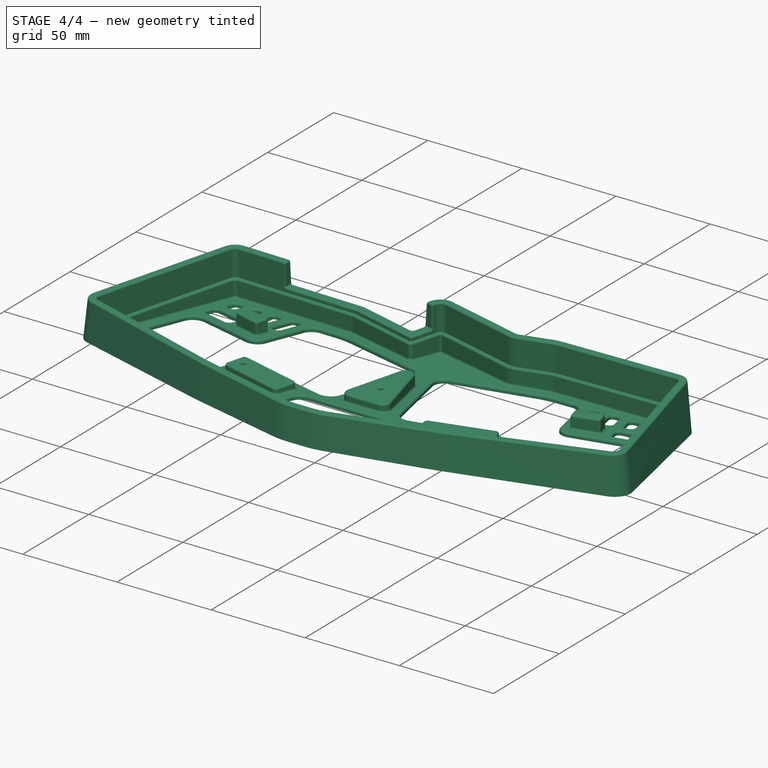
[diagram: stage 4 of 4 — iso view after this stage's code; geometry added in this stage tinted green]
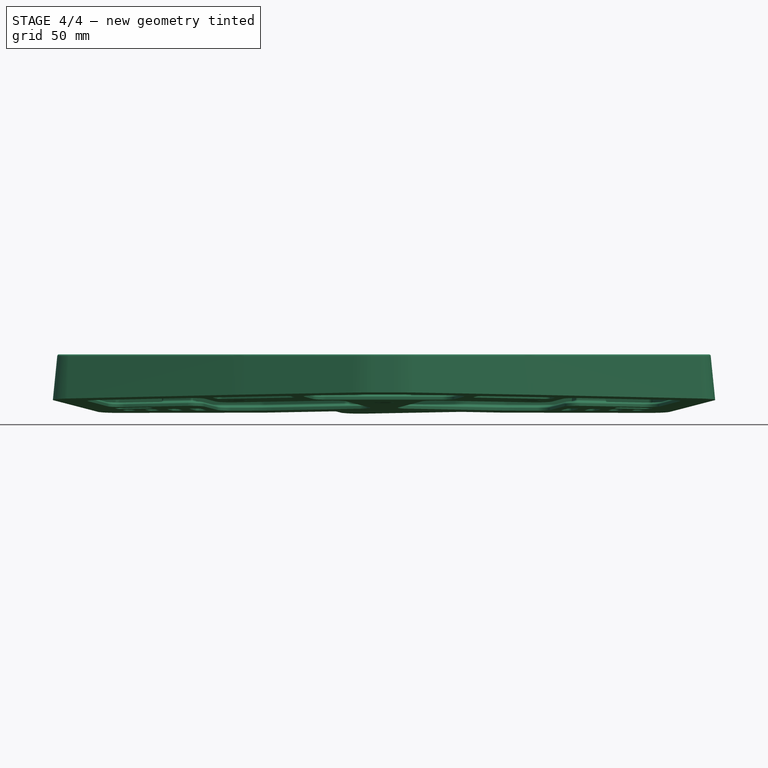
[diagram: stage 4 of 4 — front view after this stage's code; geometry added in this stage tinted green]
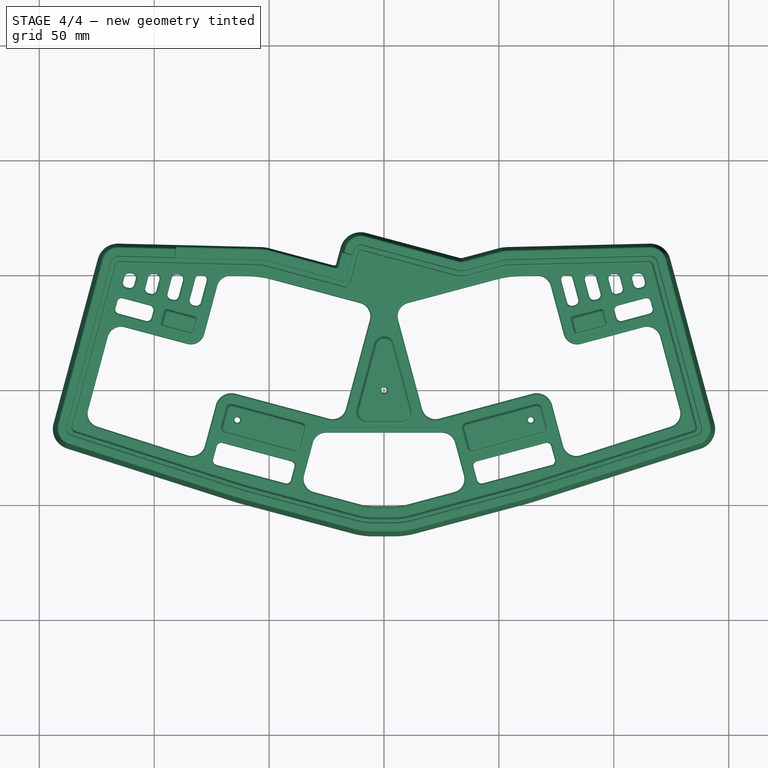
[diagram: stage 4 of 4 — top view after this stage's code; geometry added in this stage tinted green]
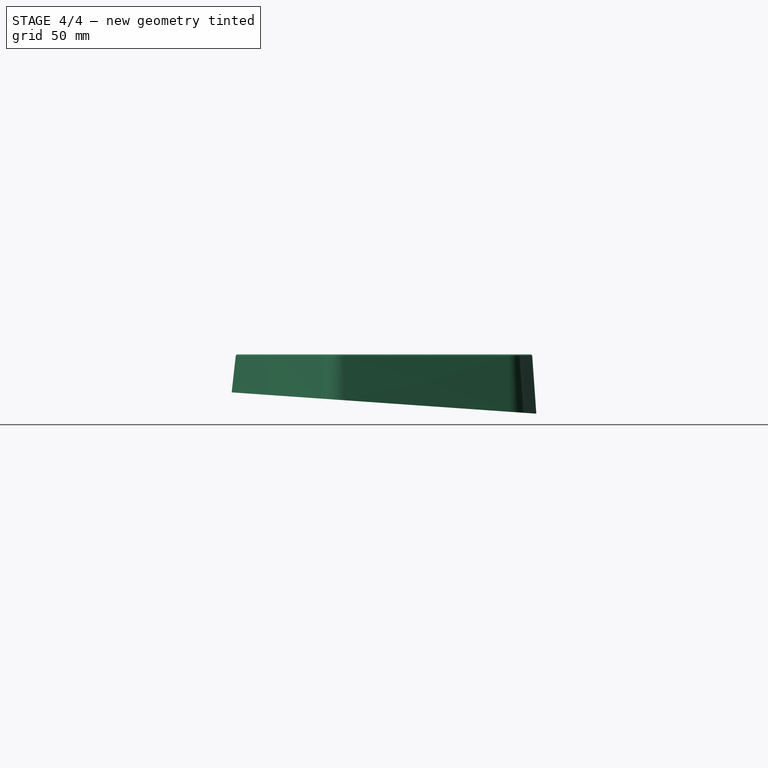
[diagram: stage 4 of 4 — right view after this stage's code; geometry added in this stage tinted green]
FEATURE [PartDesign::Fillet] Fillet
  Base = -> Chamfer [Face176,Face178,Face177,Face179,Edge729,Edge216]
  BaseFeature = -> Chamfer
  Radius = 0.8
  SupportTransform = false
  UseAllEdges = false
FEATURE [PartDesign::Fillet] Fillet001
  Base = -> Fillet [Face234,Face334,Face335,Face375,Face266,Face374]
  BaseFeature = -> Fillet
  Radius = 1
  SupportTransform = false
  UseAllEdges = false
FEATURE [PartDesign::Body] Body
  Group = -> [Sketch,Sketch001,AdditiveLoft,Sketch002,Pocket,Sketch003,Pocket001,Sketch004,Hole,Sketch005,Pocket002,Sketch006,Pocket003,Chamfer,Fillet,Fillet001]
  Origin = -> Origin
  Placement = pos=(0,0,0) rot=(1,0,0;0.069813rad)
  Tip = -> Fillet001
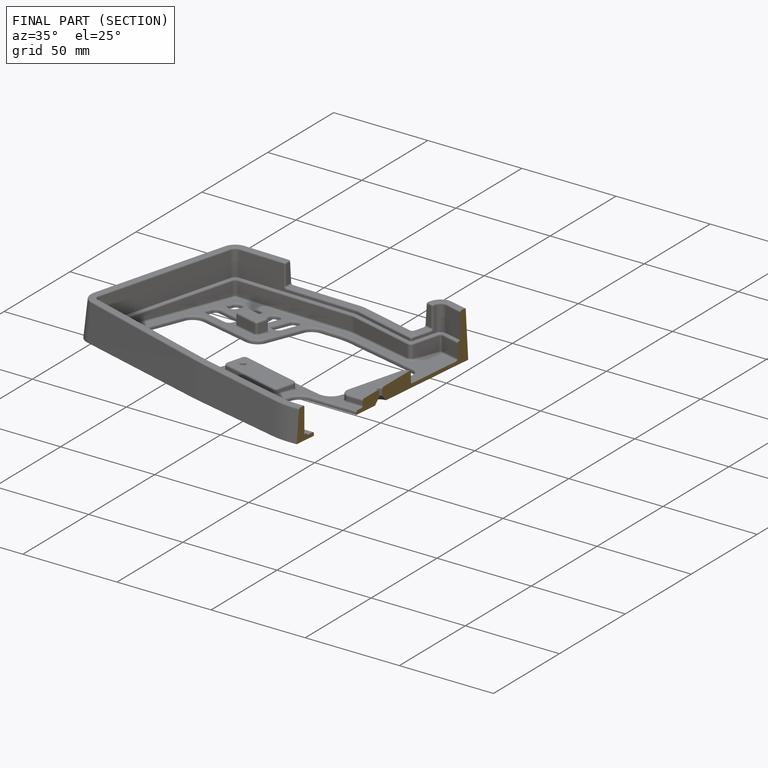
[diagram: finished part — half-section view (interior)]
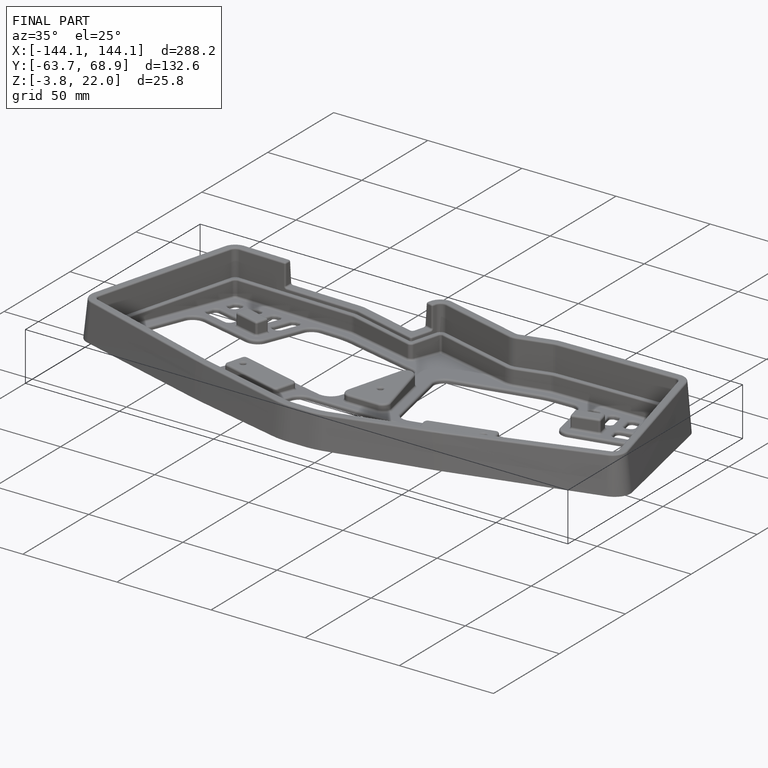
[diagram: finished part — iso view with bounding-box wireframe]
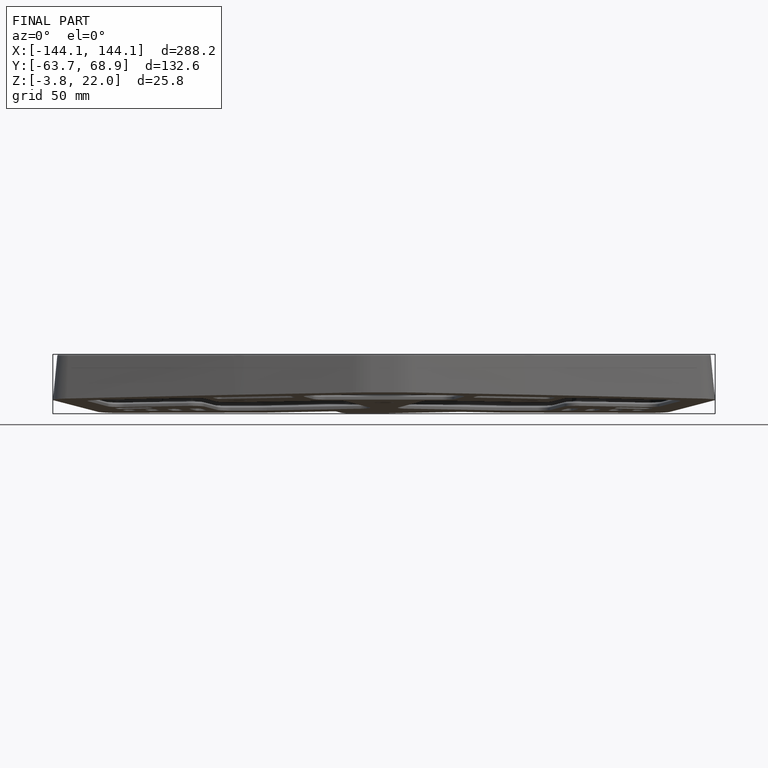
[diagram: finished part — front view with bounding-box wireframe]
